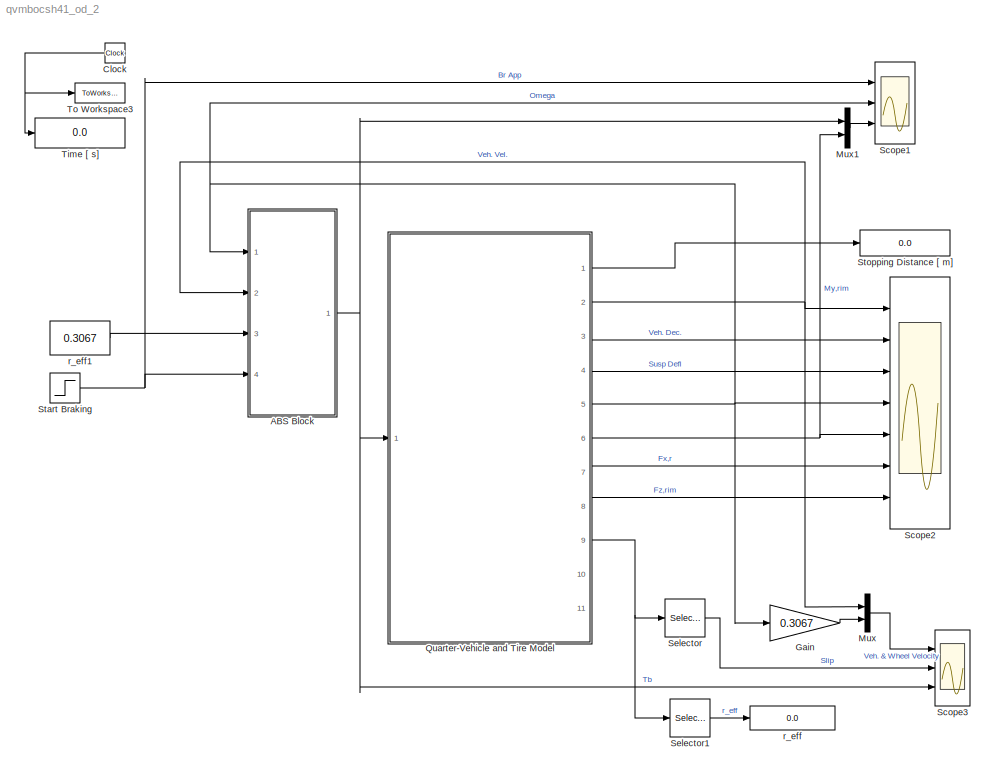
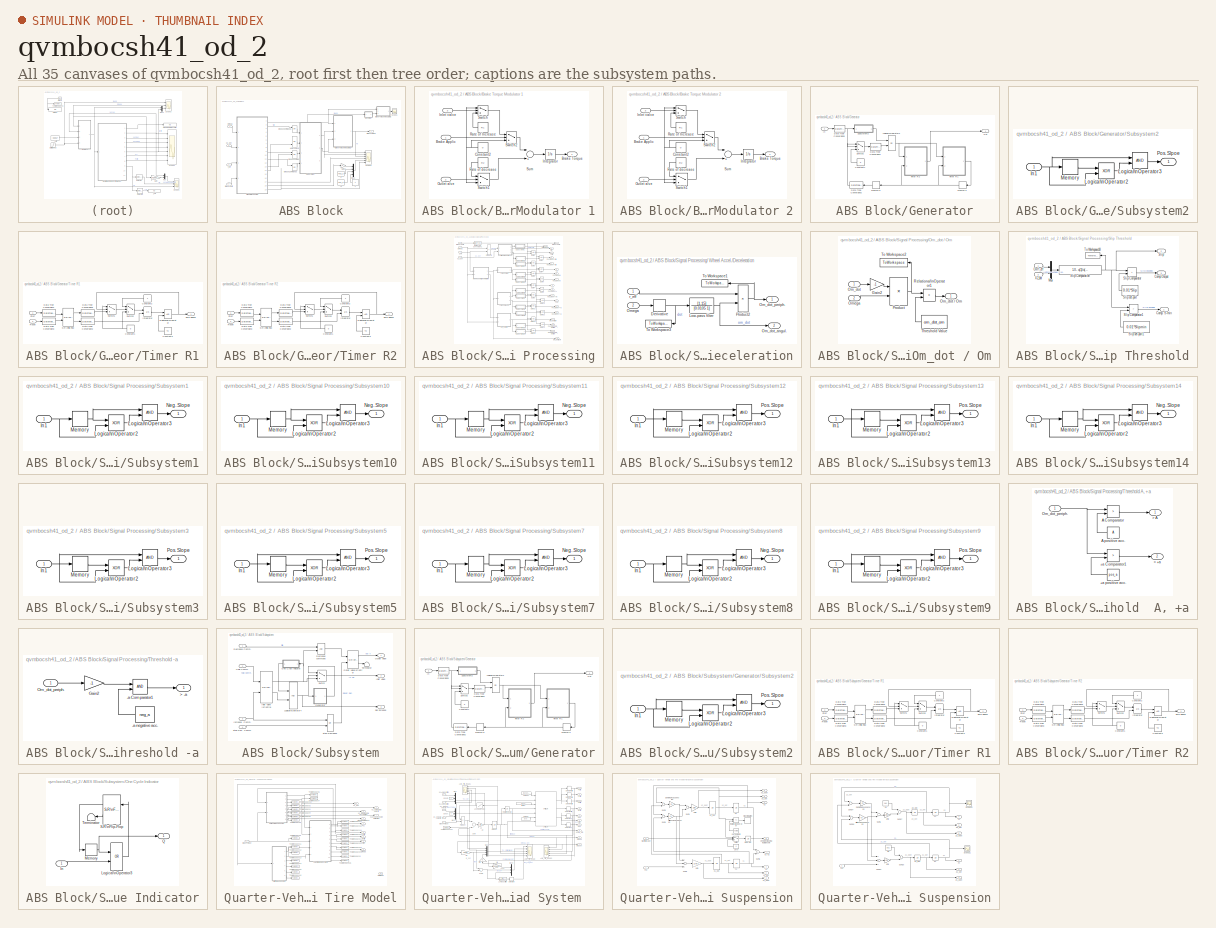
[diagram: thumbnail index - all 35 canvases of the model, root first then tree order]
MODEL qvmbocsh41_od_2
KIND model
CONFIG AbsTol = auto
CONFIG FixedStep = auto
CONFIG MaxStep = 0.001
CONFIG MinStep = auto
CONFIG RelTol = 1e-4
CONFIG Solver = ode45
CONFIG SolverMode = Auto
CONFIG StartTime = 0.0
CONFIG StopTime = 5.0
BLOCK [SubSystem] ABS Block
  MaskCallbackString = ||||||||||
  MaskEnableString = on,on,on,on,on,on,on,on,on,on,on
  MaskIconFrame = on
  MaskIconOpaque = on
  MaskIconRotate = none
  MaskIconUnits = autoscale
  MaskPromptString = R1 - Rate of incerase of the  Breake Torque. [Nm/s]|R2 - Rate of decerase of the  Breake Torque. [Nm/s]|Bmax - Max. Value of the Brake Torque. [Nm]|TO - Inlet Valve open time [s]|TC - Inlet Valve close time [s]|Desired slip [%]  |Slipmin - Minimum slip level|-a - Threshold value of the wheel peripheral deceleration [m/s^2]|+a - Threshold value of the wheel peripheral acceleration [m/s^2]|A - Thres...<+114ch>
  MaskStyleString = edit,edit,edit,edit,edit,edit,edit,edit,edit,edit,edit
  MaskToolTipString = on,on,on,on,on,on,on,on,on,on,on
  MaskTunableValueString = on,on,on,on,on,on,on,on,on,on,on
  MaskValueString = 19000|19000|2500|0.0065|0.050|20|17|60|3|10|3.5
  MaskVarAliasString = ,,,,,,,,,,
  MaskVariables = R1=@1;R2=@2;Bmax=@3;TO=@4;TC=@5;Slip=@6;Slipmin=@7;neg_a=@8;pos_a=@9;A=@10;om_dot_om=@11;
  MaskVisibilityString = on,on,on,on,on,on,on,on,on,on,on
  Ports = [4, 1]
  TreatAsAtomicUnit = off
BLOCK [Constant] ABS Block/+a
  Value = pos_a
BLOCK [Constant] ABS Block/-a
  Value = - neg_a
BLOCK [Constant] ABS Block/A
  Value = A
BLOCK [Inport] ABS Block/Brake Applic
  Port = 4
BLOCK [Outport] ABS Block/Brake Torque
BLOCK [SubSystem] ABS Block/Brake Torque Modulator 1
  Description = The sysytem holds the Brake Torque at the reached value if no control signal applied
  MaskCallbackString = ||
  MaskEnableString = on,on,on
  MaskIconFrame = on
  MaskIconOpaque = on
  MaskIconRotate = none
  MaskIconUnits = autoscale
  MaskPromptString = Bmax - Max. Value of the Brake Torque. [Nm]|R1 - Rate of incerase of the  Brake Torque. [Nm/s]|R2 - Rate of decerase of the  Brake Torque. [Nm/s]
  MaskStyleString = edit,edit,edit
  MaskToolTipString = on,on,on
  MaskTunableValueString = on,on,on
  MaskValueString = Bmax|R1|R2
  MaskVarAliasString = ,,
  MaskVariables = Bmax=@1;R1=@2;R2=@3;
  MaskVisibilityString = on,on,on
  Ports = [3, 1]
  TreatAsAtomicUnit = off
BLOCK [Inport] ABS Block/Brake Torque Modulator 1/Brake Applic
BLOCK [Outport] ABS Block/Brake Torque Modulator 1/Brake Torque
BLOCK [Constant] ABS Block/Brake Torque Modulator 1/Constant2
  Value = 0
BLOCK [Inport] ABS Block/Brake Torque Modulator 1/Inlet valve
  Port = 3
BLOCK [Integrator] ABS Block/Brake Torque Modulator 1/Integrator
  LimitOutput = on
  LowerSaturationLimit = 0
  Ports = [1, 1]
  UpperSaturationLimit = Bmax
BLOCK [Inport] ABS Block/Brake Torque Modulator 1/Outlet alve
  Port = 2
BLOCK [Constant] ABS Block/Brake Torque Modulator 1/Rate of Increase
  Value = R1
BLOCK [Constant] ABS Block/Brake Torque Modulator 1/Rate of decrease
  Value = R2
BLOCK [Sum] ABS Block/Brake Torque Modulator 1/Sum
  Inputs = |+-
  Ports = [2, 1]
BLOCK [Switch] ABS Block/Brake Torque Modulator 1/Switch
  Threshold = 1
BLOCK [Switch] ABS Block/Brake Torque Modulator 1/Switch1
  Threshold = 1
BLOCK [Switch] ABS Block/Brake Torque Modulator 1/Switch2
  Threshold = 1
BLOCK [SubSystem] ABS Block/Brake Torque Modulator 2
  Description = The sysytem holds the Brake Torque at the reached value if no control signal applied
  MaskCallbackString = ||
  MaskEnableString = on,on,on
  MaskIconFrame = on
  MaskIconOpaque = on
  MaskIconRotate = none
  MaskIconUnits = autoscale
  MaskPromptString = Bmax - Max. Value of the Brake Torque. [Nm]|R1 - Rate of incerase of the  Brake Torque. [Nm/s]|R2 - Rate of decerase of the  Brake Torque. [Nm/s]
  MaskStyleString = edit,edit,edit
  MaskToolTipString = on,on,on
  MaskTunableValueString = on,on,on
  MaskValueString = Bmax|R1|R2
  MaskVarAliasString = ,,
  MaskVariables = Bmax=@1;R1=@2;R2=@3;
  MaskVisibilityString = on,on,on
  Ports = [3, 1]
  TreatAsAtomicUnit = off
BLOCK [Inport] ABS Block/Brake Torque Modulator 2/Brake Applic
BLOCK [Outport] ABS Block/Brake Torque Modulator 2/Brake Torque
BLOCK [Constant] ABS Block/Brake Torque Modulator 2/Constant2
  Value = 0
BLOCK [Inport] ABS Block/Brake Torque Modulator 2/Inlet valve
  Port = 3
BLOCK [Integrator] ABS Block/Brake Torque Modulator 2/Integrator
  LimitOutput = on
  LowerSaturationLimit = 0
  Ports = [1, 1]
  UpperSaturationLimit = Bmax
BLOCK [Inport] ABS Block/Brake Torque Modulator 2/Outlet alve
  Port = 2
BLOCK [Constant] ABS Block/Brake Torque Modulator 2/Rate of Increase
  Value = R1
BLOCK [Constant] ABS Block/Brake Torque Modulator 2/Rate of decrease
  Value = R2
BLOCK [Sum] ABS Block/Brake Torque Modulator 2/Sum
  Inputs = |+-
  Ports = [2, 1]
BLOCK [Switch] ABS Block/Brake Torque Modulator 2/Switch
  Threshold = 1
BLOCK [Switch] ABS Block/Brake Torque Modulator 2/Switch1
  Threshold = 1
BLOCK [Switch] ABS Block/Brake Torque Modulator 2/Switch2
  Threshold = 1
BLOCK [Gain] ABS Block/Gain2
BLOCK [SubSystem] ABS Block/Generator
  MaskCallbackString = |
  MaskEnableString = on,on
  MaskIconFrame = on
  MaskIconOpaque = on
  MaskIconRotate = none
  MaskIconUnits = autoscale
  MaskPromptString = Valve open [s]|Valve closed [s]
  MaskStyleString = edit,edit
  MaskToolTipString = on,on
  MaskTunableValueString = on,on
  MaskValueString = TO|TC
  MaskVarAliasString = ,
  MaskVariables = TO=@1;TC=@2;
  MaskVisibilityString = on,on
  Ports = [1, 1]
  TreatAsAtomicUnit = off
BLOCK [Constant] ABS Block/Generator/Constant1
  Value = 0
BLOCK [DataTypeConversion] ABS Block/Generator/Data Type Conversion1
  DataType = boolean
BLOCK [DataTypeConversion] ABS Block/Generator/Data Type Conversion2
  DataType = double
BLOCK [DataTypeConversion] ABS Block/Generator/Data Type Conversion5
  DataType = boolean
BLOCK [Inport] ABS Block/Generator/In
BLOCK [Logic] ABS Block/Generator/Logical\nOperator2
  Operator = OR
  Ports = [2, 1]
BLOCK [Memory] ABS Block/Generator/Memory1
BLOCK [Memory] ABS Block/Generator/Memory2
BLOCK [Outport] ABS Block/Generator/Out
BLOCK [SubSystem] ABS Block/Generator/Subsystem2
  Ports = [1, 1]
  TreatAsAtomicUnit = off
BLOCK [Inport] ABS Block/Generator/Subsystem2/In1
BLOCK [Logic] ABS Block/Generator/Subsystem2/Logical\nOperator2
  Operator = XOR
  Ports = [2, 1]
BLOCK [Logic] ABS Block/Generator/Subsystem2/Logical\nOperator3
  Ports = [2, 1]
BLOCK [Memory] ABS Block/Generator/Subsystem2/Memory
BLOCK [Outport] ABS Block/Generator/Subsystem2/Pos. Slpoe
BLOCK [Switch] ABS Block/Generator/Switch2
  Threshold = 1
BLOCK [SubSystem] ABS Block/Generator/Timer R1
  MaskEnableString = on
  MaskIconFrame = on
  MaskIconOpaque = on
  MaskIconRotate = none
  MaskIconUnits = autoscale
  MaskPromptString = Cycle Time [s]
  MaskStyleString = edit
  MaskToolTipString = on
  MaskTunableValueString = on
  MaskValueString = TC
  MaskVariables = TC=@1;
  MaskVisibilityString = on
  Ports = [2, 1]
  TreatAsAtomicUnit = off
BLOCK [Constant] ABS Block/Generator/Timer R1/Constant1
  Value = 0
BLOCK [Constant] ABS Block/Generator/Timer R1/Constant2
BLOCK [Constant] ABS Block/Generator/Timer R1/Constant3
  Value = TC
BLOCK [DataTypeConversion] ABS Block/Generator/Timer R1/Data Type Conversion1
  DataType = boolean
BLOCK [DataTypeConversion] ABS Block/Generator/Timer R1/Data Type Conversion2
  DataType = double
BLOCK [DataTypeConversion] ABS Block/Generator/Timer R1/Data Type Conversion3
  DataType = boolean
BLOCK [DataTypeConversion] ABS Block/Generator/Timer R1/Data Type Conversion5
  DataType = double
BLOCK [Integrator] ABS Block/Generator/Timer R1/Integrator
  ExternalReset = level
  Ports = [2, 1]
BLOCK [RelationalOperator] ABS Block/Generator/Timer R1/Relational\nOperator
BLOCK [Inport] ABS Block/Generator/Timer R1/Reset
  Port = 2
BLOCK [Reference] ABS Block/Generator/Timer R1/S-R\nFlip-Flop  REF=simulink_extras/Flip Flops/S-R\nFlip-Flop
  Ports = [2, 2]
  SourceBlock = simulink_extras/Flip Flops/S-R\nFlip-Flop
  SourceType = SRFlipFlop
  initial_condition = 0
BLOCK [Inport] ABS Block/Generator/Timer R1/Start
BLOCK [Switch] ABS Block/Generator/Timer R1/Switch1
  Threshold = 1
BLOCK [Switch] ABS Block/Generator/Timer R1/Switch2
  Threshold = 1
BLOCK [Outport] ABS Block/Generator/Timer R1/Time elapse
BLOCK [SubSystem] ABS Block/Generator/Timer R2
  MaskEnableString = on
  MaskIconFrame = on
  MaskIconOpaque = on
  MaskIconRotate = none
  MaskIconUnits = autoscale
  MaskPromptString = Open time [s]
  MaskStyleString = edit
  MaskToolTipString = on
  MaskTunableValueString = on
  MaskValueString = TO
  MaskVariables = TO=@1;
  MaskVisibilityString = on
  Ports = [2, 1]
  TreatAsAtomicUnit = off
BLOCK [Constant] ABS Block/Generator/Timer R2/Constant1
  Value = 0
BLOCK [Constant] ABS Block/Generator/Timer R2/Constant2
BLOCK [Constant] ABS Block/Generator/Timer R2/Constant3
  Value = TO
BLOCK [DataTypeConversion] ABS Block/Generator/Timer R2/Data Type Conversion1
  DataType = boolean
BLOCK [DataTypeConversion] ABS Block/Generator/Timer R2/Data Type Conversion2
  DataType = double
BLOCK [DataTypeConversion] ABS Block/Generator/Timer R2/Data Type Conversion3
  DataType = boolean
BLOCK [DataTypeConversion] ABS Block/Generator/Timer R2/Data Type Conversion5
  DataType = double
BLOCK [Integrator] ABS Block/Generator/Timer R2/Integrator
  ExternalReset = level
  Ports = [2, 1]
BLOCK [RelationalOperator] ABS Block/Generator/Timer R2/Relational\nOperator
BLOCK [Inport] ABS Block/Generator/Timer R2/Reset
  Port = 2
BLOCK [Reference] ABS Block/Generator/Timer R2/S-R\nFlip-Flop  REF=simulink_extras/Flip Flops/S-R\nFlip-Flop
  Ports = [2, 2]
  SourceBlock = simulink_extras/Flip Flops/S-R\nFlip-Flop
  SourceType = SRFlipFlop
  initial_condition = 0
BLOCK [Inport] ABS Block/Generator/Timer R2/Start
BLOCK [Switch] ABS Block/Generator/Timer R2/Switch1
  Threshold = 1
BLOCK [Switch] ABS Block/Generator/Timer R2/Switch2
  Threshold = 1
BLOCK [Outport] ABS Block/Generator/Timer R2/Time elapse
BLOCK [Logic] ABS Block/Hold comand
  Inputs = 3
  Operator = OR
  Ports = [3, 1]
BLOCK [Logic] ABS Block/Icrease Command
  Inputs = 3
  Operator = OR
  Ports = [3, 1]
BLOCK [Logic] ABS Block/Icrease Command1
  Inputs = 3
  Operator = OR
  Ports = [3, 1]
BLOCK [Logic] ABS Block/Icrease Command3
  Inputs = 3
  Operator = OR
  Ports = [3, 1]
BLOCK [Mux] ABS Block/Mux1
  DisplayOption = bar
  Ports = [4, 1]
BLOCK [Inport] ABS Block/Omega
BLOCK [Scope] ABS Block/Scope1
  DataFormat = StructureWithTime
  LimitDataPoints = off
  NumInputPorts = 1
  Ports = [1]
  SaveName = ScopeData5
  TimeRange = 3
  YMax = 1
  YMin = -1
  ZoomMode = yonly
BLOCK [Scope] ABS Block/Scope3
  DataFormat = StructureWithTime
  LimitDataPoints = off
  NumInputPorts = 6
  Ports = [6]
  TimeRange = 3
  YMax = 1~1~1500~0.225~30~5
  YMin = 0~0~0~-0.025~-90~-5
  ZoomMode = yonly
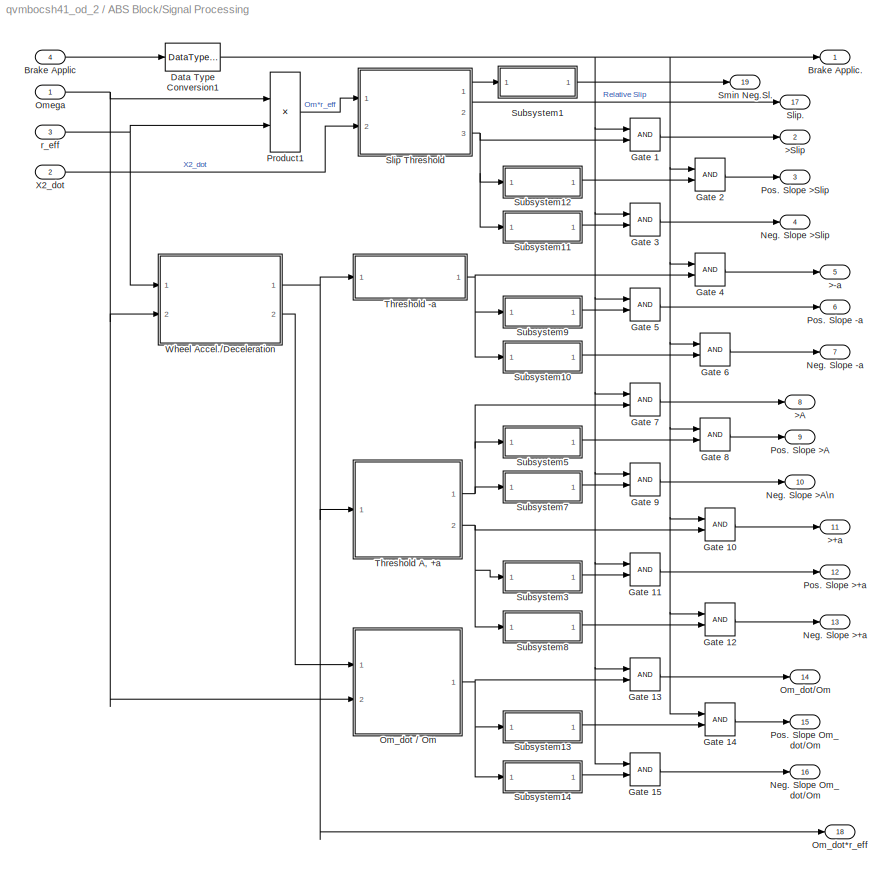
BLOCK [SubSystem] ABS Block/Signal Processing
  Ports = [4, 19]
  TreatAsAtomicUnit = off
BLOCK [Outport] ABS Block/Signal Processing/ Om_dot*r_eff
  Port = 18
BLOCK [SubSystem] ABS Block/Signal Processing/ Wheel Accel.//Deceleration
  Ports = [2, 2]
  TreatAsAtomicUnit = off
BLOCK [Derivative] ABS Block/Signal Processing/ Wheel Accel.//Deceleration/Derivative
BLOCK [TransferFcn] ABS Block/Signal Processing/ Wheel Accel.//Deceleration/Low-pass filter
  Denominator = [0.0105 1]
  Numerator = [1.15]
BLOCK [Outport] ABS Block/Signal Processing/ Wheel Accel.//Deceleration/Om_dot_angul.
  Port = 2
BLOCK [Outport] ABS Block/Signal Processing/ Wheel Accel.//Deceleration/Om_dot_periph.
BLOCK [Inport] ABS Block/Signal Processing/ Wheel Accel.//Deceleration/Omega
  Port = 2
BLOCK [Product] ABS Block/Signal Processing/ Wheel Accel.//Deceleration/Product2
  Inputs = **
  Ports = [2, 1]
BLOCK [ToWorkspace] ABS Block/Signal Processing/ Wheel Accel.//Deceleration/To Workspace1
  MaxDataPoints = 10000
  SaveFormat = Array
  VariableName = om_dot_per
BLOCK [ToWorkspace] ABS Block/Signal Processing/ Wheel Accel.//Deceleration/To Workspace3
  MaxDataPoints = 10000
  SaveFormat = Array
  VariableName = om_dotcont
BLOCK [Inport] ABS Block/Signal Processing/ Wheel Accel.//Deceleration/r_eff
BLOCK [Outport] ABS Block/Signal Processing/>+a
  Port = 11
BLOCK [Outport] ABS Block/Signal Processing/>-a
  Port = 5
BLOCK [Outport] ABS Block/Signal Processing/>A
  Port = 8
BLOCK [Outport] ABS Block/Signal Processing/>Slip
  Port = 2
BLOCK [Inport] ABS Block/Signal Processing/Brake Applic
  Port = 4
BLOCK [Outport] ABS Block/Signal Processing/Brake Applic.
BLOCK [DataTypeConversion] ABS Block/Signal Processing/Data Type Conversion1
  DataType = boolean
BLOCK [Logic] ABS Block/Signal Processing/Gate 1
  Ports = [2, 1]
BLOCK [Logic] ABS Block/Signal Processing/Gate 10
  Ports = [2, 1]
BLOCK [Logic] ABS Block/Signal Processing/Gate 11
  Ports = [2, 1]
BLOCK [Logic] ABS Block/Signal Processing/Gate 12
  Ports = [2, 1]
BLOCK [Logic] ABS Block/Signal Processing/Gate 13
  Ports = [2, 1]
BLOCK [Logic] ABS Block/Signal Processing/Gate 14
  Ports = [2, 1]
BLOCK [Logic] ABS Block/Signal Processing/Gate 15
  Ports = [2, 1]
BLOCK [Logic] ABS Block/Signal Processing/Gate 2
  Ports = [2, 1]
BLOCK [Logic] ABS Block/Signal Processing/Gate 3
  Ports = [2, 1]
BLOCK [Logic] ABS Block/Signal Processing/Gate 4
  Ports = [2, 1]
BLOCK [Logic] ABS Block/Signal Processing/Gate 5
  Ports = [2, 1]
BLOCK [Logic] ABS Block/Signal Processing/Gate 6
  Ports = [2, 1]
BLOCK [Logic] ABS Block/Signal Processing/Gate 7
  Ports = [2, 1]
BLOCK [Logic] ABS Block/Signal Processing/Gate 8
  Ports = [2, 1]
BLOCK [Logic] ABS Block/Signal Processing/Gate 9
  Ports = [2, 1]
BLOCK [Outport] ABS Block/Signal Processing/Neg. Slope -a
  Port = 7
BLOCK [Outport] ABS Block/Signal Processing/Neg. Slope >+a
  Port = 13
BLOCK [Outport] ABS Block/Signal Processing/Neg. Slope >A\n
  Port = 10
BLOCK [Outport] ABS Block/Signal Processing/Neg. Slope >Slip
  Port = 4
BLOCK [Outport] ABS Block/Signal Processing/Neg. Slope Om_dot//Om
  Port = 16
BLOCK [SubSystem] ABS Block/Signal Processing/Om_dot // Om
  Ports = [2, 1]
  TreatAsAtomicUnit = off
BLOCK [Gain] ABS Block/Signal Processing/Om_dot // Om/Gain2
  Gain = -1
BLOCK [Inport] ABS Block/Signal Processing/Om_dot // Om/Om_dot
BLOCK [Outport] ABS Block/Signal Processing/Om_dot // Om/Om_dot // Om
BLOCK [Inport] ABS Block/Signal Processing/Om_dot // Om/Omega
  Port = 2
BLOCK [Product] ABS Block/Signal Processing/Om_dot // Om/Product
  Inputs = */
  Ports = [2, 1]
BLOCK [RelationalOperator] ABS Block/Signal Processing/Om_dot // Om/Relational\nOperator1
  Operator = >
BLOCK [Constant] ABS Block/Signal Processing/Om_dot // Om/Threshold Value
  Value = om_dot_om
BLOCK [ToWorkspace] ABS Block/Signal Processing/Om_dot // Om/To Workspace2
  MaxDataPoints = 10000
  SaveFormat = Array
  VariableName = om_dotf_om
BLOCK [Outport] ABS Block/Signal Processing/Om_dot//Om
  Port = 14
BLOCK [Inport] ABS Block/Signal Processing/Omega
BLOCK [Outport] ABS Block/Signal Processing/Pos. Slope -a
  Port = 6
BLOCK [Outport] ABS Block/Signal Processing/Pos. Slope >+a
  Port = 12
BLOCK [Outport] ABS Block/Signal Processing/Pos. Slope >A
  Port = 9
BLOCK [Outport] ABS Block/Signal Processing/Pos. Slope >Slip
  Port = 3
BLOCK [Outport] ABS Block/Signal Processing/Pos. Slope Om_dot//Om
  Port = 15
BLOCK [Product] ABS Block/Signal Processing/Product1
  Inputs = **
  Ports = [2, 1]
BLOCK [SubSystem] ABS Block/Signal Processing/Slip Threshold
  Ports = [2, 3]
  TreatAsAtomicUnit = off
BLOCK [Fcn] ABS Block/Signal Processing/Slip Threshold/ Slip Computation
  Expr = 1.0 - u(1)/u(2)
BLOCK [Outport] ABS Block/Signal Processing/Slip Threshold/Comp. S-min
BLOCK [Outport] ABS Block/Signal Processing/Slip Threshold/Comp.Output
  Port = 3
BLOCK [Mux] ABS Block/Signal Processing/Slip Threshold/Mux
  DisplayOption = bar
  Inputs = 2
  Ports = [2, 1]
BLOCK [Inport] ABS Block/Signal Processing/Slip Threshold/Om*r_eff
BLOCK [Outport] ABS Block/Signal Processing/Slip Threshold/Slip
  Port = 2
BLOCK [RelationalOperator] ABS Block/Signal Processing/Slip Threshold/Slip Comparator
  Operator = >
BLOCK [RelationalOperator] ABS Block/Signal Processing/Slip Threshold/Slip Comparator1
  Operator = >
BLOCK [Constant] ABS Block/Signal Processing/Slip Threshold/Slip set-poit
  Value = 0.01*Slip
BLOCK [Constant] ABS Block/Signal Processing/Slip Threshold/Slip set-poit1
  Value = 0.01*Slipmin
BLOCK [ToWorkspace] ABS Block/Signal Processing/Slip Threshold/To Workspace18
  MaxDataPoints = 10000
  SaveFormat = Array
  VariableName = slip_est
BLOCK [Inport] ABS Block/Signal Processing/Slip Threshold/X2_dot
  Port = 2
BLOCK [Outport] ABS Block/Signal Processing/Slip.
  Port = 17
BLOCK [Outport] ABS Block/Signal Processing/Smin Neg.Sl.
  Port = 19
BLOCK [SubSystem] ABS Block/Signal Processing/Subsystem1
  Ports = [1, 1]
  TreatAsAtomicUnit = off
BLOCK [Inport] ABS Block/Signal Processing/Subsystem1/In1
BLOCK [Logic] ABS Block/Signal Processing/Subsystem1/Logical\nOperator2
  Operator = XOR
  Ports = [2, 1]
BLOCK [Logic] ABS Block/Signal Processing/Subsystem1/Logical\nOperator3
  Ports = [2, 1]
BLOCK [Memory] ABS Block/Signal Processing/Subsystem1/Memory
BLOCK [Outport] ABS Block/Signal Processing/Subsystem1/Neg. Slope
BLOCK [SubSystem] ABS Block/Signal Processing/Subsystem10
  Ports = [1, 1]
  TreatAsAtomicUnit = off
BLOCK [Inport] ABS Block/Signal Processing/Subsystem10/In1
BLOCK [Logic] ABS Block/Signal Processing/Subsystem10/Logical\nOperator2
  Operator = XOR
  Ports = [2, 1]
BLOCK [Logic] ABS Block/Signal Processing/Subsystem10/Logical\nOperator3
  Ports = [2, 1]
BLOCK [Memory] ABS Block/Signal Processing/Subsystem10/Memory
BLOCK [Outport] ABS Block/Signal Processing/Subsystem10/Neg. Slope
BLOCK [SubSystem] ABS Block/Signal Processing/Subsystem11
  Ports = [1, 1]
  TreatAsAtomicUnit = off
BLOCK [Inport] ABS Block/Signal Processing/Subsystem11/In1
BLOCK [Logic] ABS Block/Signal Processing/Subsystem11/Logical\nOperator2
  Operator = XOR
  Ports = [2, 1]
BLOCK [Logic] ABS Block/Signal Processing/Subsystem11/Logical\nOperator3
  Ports = [2, 1]
BLOCK [Memory] ABS Block/Signal Processing/Subsystem11/Memory
BLOCK [Outport] ABS Block/Signal Processing/Subsystem11/Neg. Slope
BLOCK [SubSystem] ABS Block/Signal Processing/Subsystem12
  Ports = [1, 1]
  TreatAsAtomicUnit = off
BLOCK [Inport] ABS Block/Signal Processing/Subsystem12/In1
BLOCK [Logic] ABS Block/Signal Processing/Subsystem12/Logical\nOperator2
  Operator = XOR
  Ports = [2, 1]
BLOCK [Logic] ABS Block/Signal Processing/Subsystem12/Logical\nOperator3
  Ports = [2, 1]
BLOCK [Memory] ABS Block/Signal Processing/Subsystem12/Memory
BLOCK [Outport] ABS Block/Signal Processing/Subsystem12/Pos. Slope
BLOCK [SubSystem] ABS Block/Signal Processing/Subsystem13
  Ports = [1, 1]
  TreatAsAtomicUnit = off
BLOCK [Inport] ABS Block/Signal Processing/Subsystem13/In1
BLOCK [Logic] ABS Block/Signal Processing/Subsystem13/Logical\nOperator2
  Operator = XOR
  Ports = [2, 1]
BLOCK [Logic] ABS Block/Signal Processing/Subsystem13/Logical\nOperator3
  Ports = [2, 1]
BLOCK [Memory] ABS Block/Signal Processing/Subsystem13/Memory
BLOCK [Outport] ABS Block/Signal Processing/Subsystem13/Pos. Slope
BLOCK [SubSystem] ABS Block/Signal Processing/Subsystem14
  Ports = [1, 1]
  TreatAsAtomicUnit = off
BLOCK [Inport] ABS Block/Signal Processing/Subsystem14/In1
BLOCK [Logic] ABS Block/Signal Processing/Subsystem14/Logical\nOperator2
  Operator = XOR
  Ports = [2, 1]
BLOCK [Logic] ABS Block/Signal Processing/Subsystem14/Logical\nOperator3
  Ports = [2, 1]
BLOCK [Memory] ABS Block/Signal Processing/Subsystem14/Memory
BLOCK [Outport] ABS Block/Signal Processing/Subsystem14/Neg. Slope
BLOCK [SubSystem] ABS Block/Signal Processing/Subsystem3
  Ports = [1, 1]
  TreatAsAtomicUnit = off
BLOCK [Inport] ABS Block/Signal Processing/Subsystem3/In1
BLOCK [Logic] ABS Block/Signal Processing/Subsystem3/Logical\nOperator2
  Operator = XOR
  Ports = [2, 1]
BLOCK [Logic] ABS Block/Signal Processing/Subsystem3/Logical\nOperator3
  Ports = [2, 1]
BLOCK [Memory] ABS Block/Signal Processing/Subsystem3/Memory
BLOCK [Outport] ABS Block/Signal Processing/Subsystem3/Pos. Slope
BLOCK [SubSystem] ABS Block/Signal Processing/Subsystem5
  Ports = [1, 1]
  TreatAsAtomicUnit = off
BLOCK [Inport] ABS Block/Signal Processing/Subsystem5/In1
BLOCK [Logic] ABS Block/Signal Processing/Subsystem5/Logical\nOperator2
  Operator = XOR
  Ports = [2, 1]
BLOCK [Logic] ABS Block/Signal Processing/Subsystem5/Logical\nOperator3
  Ports = [2, 1]
BLOCK [Memory] ABS Block/Signal Processing/Subsystem5/Memory
BLOCK [Outport] ABS Block/Signal Processing/Subsystem5/Pos. Slope
BLOCK [SubSystem] ABS Block/Signal Processing/Subsystem7
  Ports = [1, 1]
  TreatAsAtomicUnit = off
BLOCK [Inport] ABS Block/Signal Processing/Subsystem7/In1
BLOCK [Logic] ABS Block/Signal Processing/Subsystem7/Logical\nOperator2
  Operator = XOR
  Ports = [2, 1]
BLOCK [Logic] ABS Block/Signal Processing/Subsystem7/Logical\nOperator3
  Ports = [2, 1]
BLOCK [Memory] ABS Block/Signal Processing/Subsystem7/Memory
BLOCK [Outport] ABS Block/Signal Processing/Subsystem7/Neg. Slope
BLOCK [SubSystem] ABS Block/Signal Processing/Subsystem8
  Ports = [1, 1]
  TreatAsAtomicUnit = off
BLOCK [Inport] ABS Block/Signal Processing/Subsystem8/In1
BLOCK [Logic] ABS Block/Signal Processing/Subsystem8/Logical\nOperator2
  Operator = XOR
  Ports = [2, 1]
BLOCK [Logic] ABS Block/Signal Processing/Subsystem8/Logical\nOperator3
  Ports = [2, 1]
BLOCK [Memory] ABS Block/Signal Processing/Subsystem8/Memory
BLOCK [Outport] ABS Block/Signal Processing/Subsystem8/Neg. Slope
BLOCK [SubSystem] ABS Block/Signal Processing/Subsystem9
  Ports = [1, 1]
  TreatAsAtomicUnit = off
BLOCK [Inport] ABS Block/Signal Processing/Subsystem9/In1
BLOCK [Logic] ABS Block/Signal Processing/Subsystem9/Logical\nOperator2
  Operator = XOR
  Ports = [2, 1]
BLOCK [Logic] ABS Block/Signal Processing/Subsystem9/Logical\nOperator3
  Ports = [2, 1]
BLOCK [Memory] ABS Block/Signal Processing/Subsystem9/Memory
BLOCK [Outport] ABS Block/Signal Processing/Subsystem9/Pos. Slope
BLOCK [SubSystem] ABS Block/Signal Processing/Threshold  A, +a
  Ports = [1, 2]
  TreatAsAtomicUnit = off
BLOCK [Outport] ABS Block/Signal Processing/Threshold  A, +a/ > A
BLOCK [RelationalOperator] ABS Block/Signal Processing/Threshold  A, +a/+a Comparator1
  Operator = >
BLOCK [Constant] ABS Block/Signal Processing/Threshold  A, +a/+a positive acc.
  Value = pos_a
BLOCK [Outport] ABS Block/Signal Processing/Threshold  A, +a/> +a
  Port = 2
BLOCK [RelationalOperator] ABS Block/Signal Processing/Threshold  A, +a/A Comparator
  Operator = >
BLOCK [Constant] ABS Block/Signal Processing/Threshold  A, +a/A positive acc.
  Value = A
BLOCK [Inport] ABS Block/Signal Processing/Threshold  A, +a/Om_dot_periph.
BLOCK [SubSystem] ABS Block/Signal Processing/Threshold -a
  Ports = [1, 1]
  TreatAsAtomicUnit = off
BLOCK [RelationalOperator] ABS Block/Signal Processing/Threshold -a/-a Comparator1
BLOCK [Constant] ABS Block/Signal Processing/Threshold -a/-a negative acc.
  Value = neg_a
BLOCK [Outport] ABS Block/Signal Processing/Threshold -a/> -a
BLOCK [Gain] ABS Block/Signal Processing/Threshold -a/Gain2
  Gain = -1
BLOCK [Inport] ABS Block/Signal Processing/Threshold -a/Om_dot_periph.
BLOCK [Inport] ABS Block/Signal Processing/X2_dot
  Port = 2
BLOCK [Inport] ABS Block/Signal Processing/r_eff
  Port = 3
BLOCK [SubSystem] ABS Block/Subsystem
  Ports = [4, 3]
  TreatAsAtomicUnit = off
BLOCK [Inport] ABS Block/Subsystem/Decrease Comm.
BLOCK [Logic] ABS Block/Subsystem/Decrease command
  Ports = [2, 1]
BLOCK [SubSystem] ABS Block/Subsystem/Generator
  MaskCallbackString = |
  MaskEnableString = on,on
  MaskIconFrame = on
  MaskIconOpaque = on
  MaskIconRotate = none
  MaskIconUnits = autoscale
  MaskPromptString = Valve open [s]|Valve closed [s]
  MaskStyleString = edit,edit
  MaskToolTipString = on,on
  MaskTunableValueString = on,on
  MaskValueString = TO|TC
  MaskVarAliasString = ,
  MaskVariables = TO=@1;TC=@2;
  MaskVisibilityString = on,on
  Ports = [1, 1]
  TreatAsAtomicUnit = off
BLOCK [Constant] ABS Block/Subsystem/Generator/Constant1
  Value = 0
BLOCK [DataTypeConversion] ABS Block/Subsystem/Generator/Data Type Conversion1
  DataType = boolean
BLOCK [DataTypeConversion] ABS Block/Subsystem/Generator/Data Type Conversion2
  DataType = double
BLOCK [DataTypeConversion] ABS Block/Subsystem/Generator/Data Type Conversion5
  DataType = boolean
BLOCK [Inport] ABS Block/Subsystem/Generator/In
BLOCK [Logic] ABS Block/Subsystem/Generator/Logical\nOperator2
  Operator = OR
  Ports = [2, 1]
BLOCK [Memory] ABS Block/Subsystem/Generator/Memory1
BLOCK [Memory] ABS Block/Subsystem/Generator/Memory2
BLOCK [Outport] ABS Block/Subsystem/Generator/Out
BLOCK [SubSystem] ABS Block/Subsystem/Generator/Subsystem2
  Ports = [1, 1]
  TreatAsAtomicUnit = off
BLOCK [Inport] ABS Block/Subsystem/Generator/Subsystem2/In1
BLOCK [Logic] ABS Block/Subsystem/Generator/Subsystem2/Logical\nOperator2
  Operator = XOR
  Ports = [2, 1]
BLOCK [Logic] ABS Block/Subsystem/Generator/Subsystem2/Logical\nOperator3
  Ports = [2, 1]
BLOCK [Memory] ABS Block/Subsystem/Generator/Subsystem2/Memory
BLOCK [Outport] ABS Block/Subsystem/Generator/Subsystem2/Pos. Slpoe
BLOCK [Switch] ABS Block/Subsystem/Generator/Switch2
  Threshold = 1
BLOCK [SubSystem] ABS Block/Subsystem/Generator/Timer R1
  MaskEnableString = on
  MaskIconFrame = on
  MaskIconOpaque = on
  MaskIconRotate = none
  MaskIconUnits = autoscale
  MaskPromptString = Cycle Time [s]
  MaskStyleString = edit
  MaskToolTipString = on
  MaskTunableValueString = on
  MaskValueString = TC
  MaskVariables = TC=@1;
  MaskVisibilityString = on
  Ports = [2, 1]
  TreatAsAtomicUnit = off
BLOCK [Constant] ABS Block/Subsystem/Generator/Timer R1/Constant1
  Value = 0
BLOCK [Constant] ABS Block/Subsystem/Generator/Timer R1/Constant2
BLOCK [Constant] ABS Block/Subsystem/Generator/Timer R1/Constant3
  Value = TC
BLOCK [DataTypeConversion] ABS Block/Subsystem/Generator/Timer R1/Data Type Conversion1
  DataType = boolean
BLOCK [DataTypeConversion] ABS Block/Subsystem/Generator/Timer R1/Data Type Conversion2
  DataType = double
BLOCK [DataTypeConversion] ABS Block/Subsystem/Generator/Timer R1/Data Type Conversion3
  DataType = boolean
BLOCK [DataTypeConversion] ABS Block/Subsystem/Generator/Timer R1/Data Type Conversion5
  DataType = double
BLOCK [Integrator] ABS Block/Subsystem/Generator/Timer R1/Integrator
  ExternalReset = level
  Ports = [2, 1]
BLOCK [RelationalOperator] ABS Block/Subsystem/Generator/Timer R1/Relational\nOperator
BLOCK [Inport] ABS Block/Subsystem/Generator/Timer R1/Reset
  Port = 2
BLOCK [Reference] ABS Block/Subsystem/Generator/Timer R1/S-R\nFlip-Flop  REF=simulink_extras/Flip Flops/S-R\nFlip-Flop
  Ports = [2, 2]
  SourceBlock = simulink_extras/Flip Flops/S-R\nFlip-Flop
  SourceType = SRFlipFlop
  initial_condition = 0
BLOCK [Inport] ABS Block/Subsystem/Generator/Timer R1/Start
BLOCK [Switch] ABS Block/Subsystem/Generator/Timer R1/Switch1
  Threshold = 1
BLOCK [Switch] ABS Block/Subsystem/Generator/Timer R1/Switch2
  Threshold = 1
BLOCK [Outport] ABS Block/Subsystem/Generator/Timer R1/Time elapse
BLOCK [SubSystem] ABS Block/Subsystem/Generator/Timer R2
  MaskEnableString = on
  MaskIconFrame = on
  MaskIconOpaque = on
  MaskIconRotate = none
  MaskIconUnits = autoscale
  MaskPromptString = Open time [s]
  MaskStyleString = edit
  MaskToolTipString = on
  MaskTunableValueString = on
  MaskValueString = TO
  MaskVariables = TO=@1;
  MaskVisibilityString = on
  Ports = [2, 1]
  TreatAsAtomicUnit = off
BLOCK [Constant] ABS Block/Subsystem/Generator/Timer R2/Constant1
  Value = 0
BLOCK [Constant] ABS Block/Subsystem/Generator/Timer R2/Constant2
BLOCK [Constant] ABS Block/Subsystem/Generator/Timer R2/Constant3
  Value = TO
BLOCK [DataTypeConversion] ABS Block/Subsystem/Generator/Timer R2/Data Type Conversion1
  DataType = boolean
BLOCK [DataTypeConversion] ABS Block/Subsystem/Generator/Timer R2/Data Type Conversion2
  DataType = double
BLOCK [DataTypeConversion] ABS Block/Subsystem/Generator/Timer R2/Data Type Conversion3
  DataType = boolean
BLOCK [DataTypeConversion] ABS Block/Subsystem/Generator/Timer R2/Data Type Conversion5
  DataType = double
BLOCK [Integrator] ABS Block/Subsystem/Generator/Timer R2/Integrator
  ExternalReset = level
  Ports = [2, 1]
BLOCK [RelationalOperator] ABS Block/Subsystem/Generator/Timer R2/Relational\nOperator
BLOCK [Inport] ABS Block/Subsystem/Generator/Timer R2/Reset
  Port = 2
BLOCK [Reference] ABS Block/Subsystem/Generator/Timer R2/S-R\nFlip-Flop  REF=simulink_extras/Flip Flops/S-R\nFlip-Flop
  Ports = [2, 2]
  SourceBlock = simulink_extras/Flip Flops/S-R\nFlip-Flop
  SourceType = SRFlipFlop
  initial_condition = 0
BLOCK [Inport] ABS Block/Subsystem/Generator/Timer R2/Start
BLOCK [Switch] ABS Block/Subsystem/Generator/Timer R2/Switch1
  Threshold = 1
BLOCK [Switch] ABS Block/Subsystem/Generator/Timer R2/Switch2
  Threshold = 1
BLOCK [Outport] ABS Block/Subsystem/Generator/Timer R2/Time elapse
BLOCK [Inport] ABS Block/Subsystem/Hold Comm.
  Port = 2
BLOCK [Inport] ABS Block/Subsystem/Increase. Comm.
  Port = 3
BLOCK [Outport] ABS Block/Subsystem/Inlet Valve
  Port = 2
BLOCK [Reference] ABS Block/Subsystem/Inlet Valve \nControl  REF=simulink_extras/Flip Flops/S-R\nFlip-Flop
  Ports = [2, 2]
  SourceBlock = simulink_extras/Flip Flops/S-R\nFlip-Flop
  SourceType = SRFlipFlop
  initial_condition = 0
BLOCK [Logic] ABS Block/Subsystem/Logical\nOperator4
  Ports = [2, 1]
BLOCK [SubSystem] ABS Block/Subsystem/One Cycle Indicator
  Ports = [1, 1]
  TreatAsAtomicUnit = off
BLOCK [Inport] ABS Block/Subsystem/One Cycle Indicator/In
BLOCK [Logic] ABS Block/Subsystem/One Cycle Indicator/Logical\nOperator3
  Operator = OR
  Ports = [2, 1]
BLOCK [Memory] ABS Block/Subsystem/One Cycle Indicator/Memory
BLOCK [Outport] ABS Block/Subsystem/One Cycle Indicator/Q
BLOCK [Reference] ABS Block/Subsystem/One Cycle Indicator/S-R\nFlip-Flop  REF=simulink_extras/Flip Flops/S-R\nFlip-Flop
  Ports = [2, 2]
  SourceBlock = simulink_extras/Flip Flops/S-R\nFlip-Flop
  SourceType = SRFlipFlop
  initial_condition = 0
BLOCK [Terminator] ABS Block/Subsystem/One Cycle Indicator/Terminator
BLOCK [Outport] ABS Block/Subsystem/Outlet Valve
BLOCK [Reference] ABS Block/Subsystem/Outlet Valve\nControl  REF=simulink_extras/Flip Flops/S-R\nFlip-Flop
  Ports = [2, 2]
  SourceBlock = simulink_extras/Flip Flops/S-R\nFlip-Flop
  SourceType = SRFlipFlop
  initial_condition = 0
BLOCK [Outport] ABS Block/Subsystem/Sec increase
  Port = 3
BLOCK [Inport] ABS Block/Subsystem/Stop Dec. Comm.
  Port = 4
BLOCK [Logic] ABS Block/Subsystem/Stop Decrease
  Operator = OR
  Ports = [2, 1]
BLOCK [Switch] ABS Block/Subsystem/Switch
BLOCK [Terminator] ABS Block/Subsystem/Terminator
BLOCK [Inport] ABS Block/X2_dot
  Port = 2
BLOCK [Inport] ABS Block/r_eff
  Port = 3
BLOCK [Clock] Clock
  Decimation = 10
BLOCK [Gain] Gain
  Gain = 0.3067
BLOCK [Mux] Mux
  DisplayOption = bar
  Inputs = 2
  Ports = [2, 1]
BLOCK [Mux] Mux1
  DisplayOption = bar
  Inputs = 2
  Ports = [2, 1]
BLOCK [SubSystem] Quarter-Vehicle and Tire Model
  MaskCallbackString = ||||||||||
  MaskDescription = Vstop - The velocity value, at which the vehicle is considered stoped.
  MaskEnableString = on,on,on,on,on,on,on,on,on,on,on
  MaskIconFrame = on
  MaskIconOpaque = on
  MaskIconRotate = none
  MaskIconUnits = autoscale
  MaskInitialization = disp('initial conditions...')\nZ10=ro - 9.81*(m1+m2)/195000\nZ20=Z10 - 9.81*m2/kz\nX20=0\nX10=X20+0.01\nVin\nr_eff\nOm_in=Vin/r_eff\n
  MaskPromptString = m2 - Quarter of the vehicle mass [kg]|m1 - Axle mass [kg]|kz - Suspension stiffness [N/m]|cz - Suspension damping [N.s/m]|kx - Longitudinal suspension stiffness [N/m]|cx - Longitudinal suspension damping [N.s/m]|Vstop - Velocity at which the vehicle is considered stoped [m/s]|Ip - Wheel polar moment of inertia [kg.m^2]|ro - Unloaded tire radius [m]|r_eff - Effecive rolling radius [m]|Vin - Initial...<+23ch>
  MaskStyleString = edit,edit,edit,edit,edit,edit,edit,edit,edit,edit,edit
  MaskToolTipString = on,on,on,on,on,on,on,on,on,on,on
  MaskTunableValueString = on,on,on,on,on,on,on,on,on,on,on
  MaskValueString = 300|35|20000|2000|80000|1100|1|1.04|0.3135|0.3067|80/3.6
  MaskVarAliasString = ,,,,,,,,,,
  MaskVariables = m2=@1;m1=@2;kz=@3;Cz=@4;kx=@5;Cx=@6;Vstop=@7;Ip=@8;ro=@9;r_eff=@10;Vin=@11;
  MaskVisibilityString = on,on,on,on,on,on,on,on,on,on,on
  Ports = [1, 11]
  TreatAsAtomicUnit = off
BLOCK [Inport] Quarter-Vehicle and Tire Model/ Brake Torque
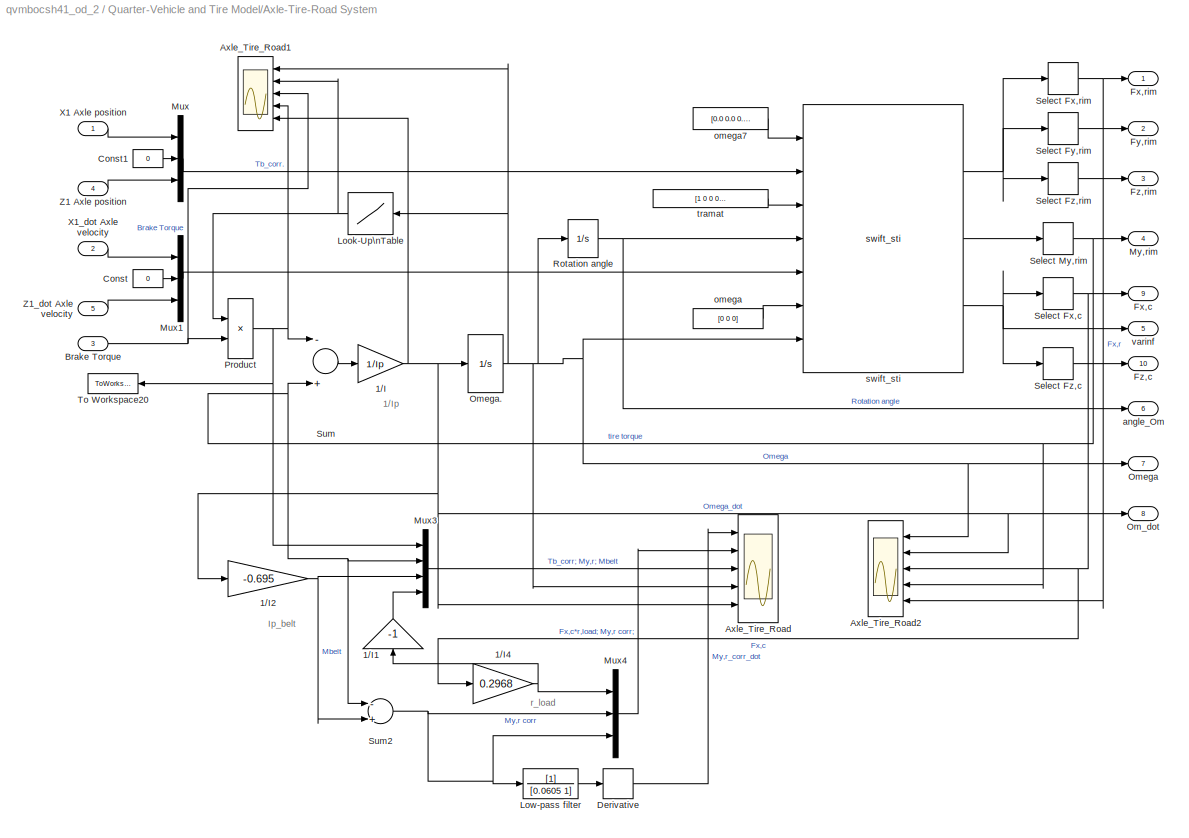
BLOCK [SubSystem] Quarter-Vehicle and Tire Model/Axle-Tire-Road System  
  Ports = [5, 10]
  TreatAsAtomicUnit = off
BLOCK [Outport] Quarter-Vehicle and Tire Model/Axle-Tire-Road System  / Omega
  Port = 7
BLOCK [Gain] Quarter-Vehicle and Tire Model/Axle-Tire-Road System  /1//I
  Gain = 1/Ip
BLOCK [Gain] Quarter-Vehicle and Tire Model/Axle-Tire-Road System  /1//I1
  Gain = -1
BLOCK [Gain] Quarter-Vehicle and Tire Model/Axle-Tire-Road System  /1//I2
  Gain = -0.695
BLOCK [Gain] Quarter-Vehicle and Tire Model/Axle-Tire-Road System  /1//I4
  Gain = 0.2968
BLOCK [Scope] Quarter-Vehicle and Tire Model/Axle-Tire-Road System  /Axle_Tire_Road
  DataFormat = StructureWithTime
  LimitDataPoints = off
  NumInputPorts = 5
  Ports = [5]
  SaveName = ScopeData8
  YMax = 10000~250~1500~75~200
  YMin = -25000~-1500~-250~35~-250
  ZoomMode = yonly
BLOCK [Scope] Quarter-Vehicle and Tire Model/Axle-Tire-Road System  /Axle_Tire_Road1
  DataFormat = StructureWithTime
  LimitDataPoints = off
  NumInputPorts = 5
  Ports = [5]
  SaveName = ScopeData9
  YMax = 100~1.1~9000~3500~250
  YMin = 0~5.55112e-017~0~0~-1500
  ZoomMode = xonly
BLOCK [Scope] Quarter-Vehicle and Tire Model/Axle-Tire-Road System  /Axle_Tire_Road2
  DataFormat = StructureWithTime
  LimitDataPoints = off
  NumInputPorts = 5
  Ports = [5]
  SaveName = ScopeData2
  YMax = 80~250~1000~1750~1000
  YMin = 0~-1500~-5000~-250~-5000
  ZoomMode = yonly
BLOCK [Inport] Quarter-Vehicle and Tire Model/Axle-Tire-Road System  /Brake Torque
  Port = 3
BLOCK [Constant] Quarter-Vehicle and Tire Model/Axle-Tire-Road System  /Const
  Value = 0
BLOCK [Constant] Quarter-Vehicle and Tire Model/Axle-Tire-Road System  /Const1
  Value = 0
BLOCK [Derivative] Quarter-Vehicle and Tire Model/Axle-Tire-Road System  /Derivative
BLOCK [Outport] Quarter-Vehicle and Tire Model/Axle-Tire-Road System  /Fx,c
  Port = 9
BLOCK [Outport] Quarter-Vehicle and Tire Model/Axle-Tire-Road System  /Fx,rim
BLOCK [Outport] Quarter-Vehicle and Tire Model/Axle-Tire-Road System  /Fy,rim
  Port = 2
BLOCK [Outport] Quarter-Vehicle and Tire Model/Axle-Tire-Road System  /Fz,c
  Port = 10
BLOCK [Outport] Quarter-Vehicle and Tire Model/Axle-Tire-Road System  /Fz,rim
  Port = 3
BLOCK [Lookup] Quarter-Vehicle and Tire Model/Axle-Tire-Road System  /Look-Up\nTable
  InputValues = [-10:0.01:10]
  OutputValues = tanh(0.5*[-10:0.01:10])
BLOCK [TransferFcn] Quarter-Vehicle and Tire Model/Axle-Tire-Road System  /Low-pass filter
  Denominator = [0.0605 1]
BLOCK [Mux] Quarter-Vehicle and Tire Model/Axle-Tire-Road System  /Mux
  DisplayOption = bar
  Inputs = 3
  Ports = [3, 1]
BLOCK [Mux] Quarter-Vehicle and Tire Model/Axle-Tire-Road System  /Mux1
  DisplayOption = bar
  Inputs = 3
  Ports = [3, 1]
BLOCK [Mux] Quarter-Vehicle and Tire Model/Axle-Tire-Road System  /Mux3
  DisplayOption = bar
  Ports = [4, 1]
BLOCK [Mux] Quarter-Vehicle and Tire Model/Axle-Tire-Road System  /Mux4
  DisplayOption = bar
  Inputs = 3
  Ports = [3, 1]
BLOCK [Outport] Quarter-Vehicle and Tire Model/Axle-Tire-Road System  /My,rim
  Port = 4
BLOCK [Outport] Quarter-Vehicle and Tire Model/Axle-Tire-Road System  /Om_dot
  Port = 8
BLOCK [Integrator] Quarter-Vehicle and Tire Model/Axle-Tire-Road System  /Omega.
  InitialCondition = Om_in
  LowerSaturationLimit = 0
  Ports = [1, 1]
  UpperSaturationLimit = 200
BLOCK [Product] Quarter-Vehicle and Tire Model/Axle-Tire-Road System  /Product
  Ports = [2, 1]
BLOCK [Integrator] Quarter-Vehicle and Tire Model/Axle-Tire-Road System  /Rotation angle
  LowerSaturationLimit = 0
  Ports = [1, 1]
  UpperSaturationLimit = 1000
BLOCK [Selector] Quarter-Vehicle and Tire Model/Axle-Tire-Road System  /Select Fx,c
  Elements = 4
  InputPortWidth = 40
  Ports = [1, 1]
BLOCK [Selector] Quarter-Vehicle and Tire Model/Axle-Tire-Road System  /Select Fx,rim
  InputPortWidth = 3
  Ports = [1, 1]
BLOCK [Selector] Quarter-Vehicle and Tire Model/Axle-Tire-Road System  /Select Fy,rim
  Elements = 2
  InputPortWidth = 3
  Ports = [1, 1]
BLOCK [Selector] Quarter-Vehicle and Tire Model/Axle-Tire-Road System  /Select Fz,c
  Elements = 6
  InputPortWidth = 40
  Ports = [1, 1]
BLOCK [Selector] Quarter-Vehicle and Tire Model/Axle-Tire-Road System  /Select Fz,rim
  Elements = 3
  InputPortWidth = 3
  Ports = [1, 1]
BLOCK [Selector] Quarter-Vehicle and Tire Model/Axle-Tire-Road System  /Select My,rim
  Elements = 2
  InputPortWidth = 3
  Ports = [1, 1]
BLOCK [Sum] Quarter-Vehicle and Tire Model/Axle-Tire-Road System  /Sum
  Inputs = -+
  Ports = [2, 1]
BLOCK [Sum] Quarter-Vehicle and Tire Model/Axle-Tire-Road System  /Sum2
  Inputs = -+
  Ports = [2, 1]
BLOCK [ToWorkspace] Quarter-Vehicle and Tire Model/Axle-Tire-Road System  /To Workspace20
  MaxDataPoints = 10000
  SaveFormat = Array
  VariableName = Tb_corr
BLOCK [Inport] Quarter-Vehicle and Tire Model/Axle-Tire-Road System  /X1 Axle position
BLOCK [Inport] Quarter-Vehicle and Tire Model/Axle-Tire-Road System  /X1_dot Axle velocity
  Port = 2
BLOCK [Inport] Quarter-Vehicle and Tire Model/Axle-Tire-Road System  /Z1 Axle position
  Port = 4
BLOCK [Inport] Quarter-Vehicle and Tire Model/Axle-Tire-Road System  /Z1_dot Axle velocity
  Port = 5
BLOCK [Outport] Quarter-Vehicle and Tire Model/Axle-Tire-Road System  /angle_Om
  Port = 6
BLOCK [Constant] Quarter-Vehicle and Tire Model/Axle-Tire-Road System  /omega
  Value = [0 0 0]
BLOCK [Constant] Quarter-Vehicle and Tire Model/Axle-Tire-Road System  /omega7
  Value = [0.0 0.0 0.0]
BLOCK [Reference] Quarter-Vehicle and Tire Model/Axle-Tire-Road System  /swift_sti  REF=dtlib/swift_sti  (lib defined in mdl_8cef2accd2ac)
  Ports = [7, 3]
  SourceBlock = dtlib/swift_sti
  SourceType = SWIFT_STI
  idtyre = 1
  rdfname = 'div_road_5.rdf'
  road_popup = Data file (effective inputs)
  tpfname = 'L_swt_car205_60R15.tir'
  use_mode = 124
BLOCK [Constant] Quarter-Vehicle and Tire Model/Axle-Tire-Road System  /tramat
  Value = [1 0 0    0 1 0    0 0 1]
BLOCK [Outport] Quarter-Vehicle and Tire Model/Axle-Tire-Road System  /varinf
  Port = 5
BLOCK [Outport] Quarter-Vehicle and Tire Model/Fx,r
  Port = 7
BLOCK [Outport] Quarter-Vehicle and Tire Model/Fz,rim
  Port = 8
BLOCK [SubSystem] Quarter-Vehicle and Tire Model/Horizontal Suspension
  Ports = [2, 8]
  TreatAsAtomicUnit = off
BLOCK [Gain] Quarter-Vehicle and Tire Model/Horizontal Suspension/1//m1
  Gain = 1/m1
BLOCK [Gain] Quarter-Vehicle and Tire Model/Horizontal Suspension/1//m2
  Gain = 1/m2
BLOCK [Gain] Quarter-Vehicle and Tire Model/Horizontal Suspension/Damping\nSuspension
  Gain = Cx
BLOCK [Inport] Quarter-Vehicle and Tire Model/Horizontal Suspension/Fx,r 
BLOCK [Integrator] Quarter-Vehicle and Tire Model/Horizontal Suspension/Integrator
  Ports = [1, 1]
BLOCK [RelationalOperator] Quarter-Vehicle and Tire Model/Horizontal Suspension/Relational\nOperator
  Operator = <=
BLOCK [Inport] Quarter-Vehicle and Tire Model/Horizontal Suspension/Start to Brake
  Port = 2
BLOCK [Gain] Quarter-Vehicle and Tire Model/Horizontal Suspension/Stiffness\nSuspension
  Gain = kx
BLOCK [Stop] Quarter-Vehicle and Tire Model/Horizontal Suspension/Stop Simulation
BLOCK [Sum] Quarter-Vehicle and Tire Model/Horizontal Suspension/Sum1
  Inputs = --
  Ports = [2, 1]
BLOCK [Sum] Quarter-Vehicle and Tire Model/Horizontal Suspension/Sum2
  Inputs = +++
  Ports = [3, 1]
BLOCK [Sum] Quarter-Vehicle and Tire Model/Horizontal Suspension/Sum3
  Inputs = +-
  Ports = [2, 1]
BLOCK [Sum] Quarter-Vehicle and Tire Model/Horizontal Suspension/Sum4
  Inputs = +-
  Ports = [2, 1]
BLOCK [Sum] Quarter-Vehicle and Tire Model/Horizontal Suspension/Sum5
  Inputs = -+
  Ports = [2, 1]
BLOCK [Switch] Quarter-Vehicle and Tire Model/Horizontal Suspension/Switch
  Threshold = 0.1
BLOCK [Outport] Quarter-Vehicle and Tire Model/Horizontal Suspension/Vehicle\nStopping \nDistance\n
  Port = 8
BLOCK [Outport] Quarter-Vehicle and Tire Model/Horizontal Suspension/X1
BLOCK [Outport] Quarter-Vehicle and Tire Model/Horizontal Suspension/X1 - X2
  Port = 7
BLOCK [Integrator] Quarter-Vehicle and Tire Model/Horizontal Suspension/X1.
  InitialCondition = X10
  LowerSaturationLimit = -0.1
  Ports = [1, 1]
  UpperSaturationLimit = +inf
BLOCK [Outport] Quarter-Vehicle and Tire Model/Horizontal Suspension/X1_ddot
  Port = 3
BLOCK [Outport] Quarter-Vehicle and Tire Model/Horizontal Suspension/X1_dot
  Port = 2
BLOCK [Integrator] Quarter-Vehicle and Tire Model/Horizontal Suspension/X1_dot.
  InitialCondition = Vin
  LowerSaturationLimit = 0
  Ports = [1, 1]
  UpperSaturationLimit = 34
BLOCK [Outport] Quarter-Vehicle and Tire Model/Horizontal Suspension/X2
  Port = 4
BLOCK [Integrator] Quarter-Vehicle and Tire Model/Horizontal Suspension/X2.
  InitialCondition = X20
  Ports = [1, 1]
BLOCK [Outport] Quarter-Vehicle and Tire Model/Horizontal Suspension/X2_ddot
  Port = 6
BLOCK [Outport] Quarter-Vehicle and Tire Model/Horizontal Suspension/X2_dot
  Port = 5
BLOCK [Integrator] Quarter-Vehicle and Tire Model/Horizontal Suspension/X2_dot.
  InitialCondition = Vin
  LowerSaturationLimit = 0
  Ports = [1, 1]
  UpperSaturationLimit = 34
BLOCK [Constant] Quarter-Vehicle and Tire Model/Horizontal Suspension/zero 
  Value = 0
BLOCK [Constant] Quarter-Vehicle and Tire Model/Horizontal Suspension/zero velocity
  Value = Vstop
BLOCK [Outport] Quarter-Vehicle and Tire Model/My,rim
  Port = 6
BLOCK [Outport] Quarter-Vehicle and Tire Model/Omega
  Port = 5
BLOCK [Outport] Quarter-Vehicle and Tire Model/Optimal Tb
  Port = 10
BLOCK [Outport] Quarter-Vehicle and Tire Model/Stopping Distance
BLOCK [ToWorkspace] Quarter-Vehicle and Tire Model/To Workspace1
  MaxDataPoints = 10000
  SaveFormat = Array
  VariableName = X2_dot
BLOCK [ToWorkspace] Quarter-Vehicle and Tire Model/To Workspace10
  MaxDataPoints = 10000
  SaveFormat = Array
  VariableName = X1_ddot
BLOCK [ToWorkspace] Quarter-Vehicle and Tire Model/To Workspace11
  MaxDataPoints = 10000
  SaveFormat = Array
  VariableName = Z1
BLOCK [ToWorkspace] Quarter-Vehicle and Tire Model/To Workspace12
  MaxDataPoints = 10000
  SaveFormat = Array
  VariableName = Z1_dot
BLOCK [ToWorkspace] Quarter-Vehicle and Tire Model/To Workspace13
  MaxDataPoints = 10000
  SaveFormat = Array
  VariableName = Z1_ddot
BLOCK [ToWorkspace] Quarter-Vehicle and Tire Model/To Workspace14
  MaxDataPoints = 10000
  SaveFormat = Array
  VariableName = Z2
BLOCK [ToWorkspace] Quarter-Vehicle and Tire Model/To Workspace15
  MaxDataPoints = 10000
  SaveFormat = Array
  VariableName = Z2_dot
BLOCK [ToWorkspace] Quarter-Vehicle and Tire Model/To Workspace16
  MaxDataPoints = 10000
  SaveFormat = Array
  VariableName = Z2_ddot
BLOCK [ToWorkspace] Quarter-Vehicle and Tire Model/To Workspace17
  MaxDataPoints = 10000
  SaveFormat = Array
  VariableName = Fx_r
BLOCK [ToWorkspace] Quarter-Vehicle and Tire Model/To Workspace18
  MaxDataPoints = 10000
  SaveFormat = Array
  VariableName = Fy_r
BLOCK [ToWorkspace] Quarter-Vehicle and Tire Model/To Workspace19
  MaxDataPoints = 10000
  SaveFormat = Array
  VariableName = Fz_r
BLOCK [ToWorkspace] Quarter-Vehicle and Tire Model/To Workspace2
  MaxDataPoints = 10000
  SaveFormat = Array
  VariableName = X2
BLOCK [ToWorkspace] Quarter-Vehicle and Tire Model/To Workspace20
  MaxDataPoints = 10000
  SaveFormat = Array
  VariableName = My_r
BLOCK [ToWorkspace] Quarter-Vehicle and Tire Model/To Workspace21
  MaxDataPoints = 10000
  SaveFormat = Array
  VariableName = varinf
BLOCK [ToWorkspace] Quarter-Vehicle and Tire Model/To Workspace22
  MaxDataPoints = 10000
  SaveFormat = Array
  VariableName = angle_om
BLOCK [ToWorkspace] Quarter-Vehicle and Tire Model/To Workspace23
  MaxDataPoints = 10000
  SaveFormat = Array
  VariableName = omega
BLOCK [ToWorkspace] Quarter-Vehicle and Tire Model/To Workspace24
  MaxDataPoints = 10000
  SaveFormat = Array
  VariableName = om_dot
BLOCK [ToWorkspace] Quarter-Vehicle and Tire Model/To Workspace25
  MaxDataPoints = 10000
  SaveFormat = Array
  VariableName = Fz_c
BLOCK [ToWorkspace] Quarter-Vehicle and Tire Model/To Workspace3
  MaxDataPoints = 10000
  SaveFormat = Array
  VariableName = Fx_c
BLOCK [ToWorkspace] Quarter-Vehicle and Tire Model/To Workspace4
  MaxDataPoints = 10000
  SaveFormat = Array
  VariableName = X2_ddot
BLOCK [ToWorkspace] Quarter-Vehicle and Tire Model/To Workspace5
  MaxDataPoints = 10000
  SaveFormat = Array
  VariableName = X1minX2
BLOCK [ToWorkspace] Quarter-Vehicle and Tire Model/To Workspace6
  MaxDataPoints = 10000
  SaveFormat = Array
  VariableName = X1
BLOCK [ToWorkspace] Quarter-Vehicle and Tire Model/To Workspace7
  MaxDataPoints = 10000
  SaveFormat = Array
  VariableName = X1_dot
BLOCK [ToWorkspace] Quarter-Vehicle and Tire Model/To Workspace8
  MaxDataPoints = 10000
  SaveFormat = Array
  VariableName = stopd
BLOCK [ToWorkspace] Quarter-Vehicle and Tire Model/To Workspace9
  MaxDataPoints = 10000
  SaveFormat = Array
  VariableName = Tb
BLOCK [SubSystem] Quarter-Vehicle and Tire Model/Vertical Suspension
  MaskIconFrame = on
  MaskIconOpaque = on
  MaskIconRotate = none
  MaskIconUnits = autoscale
  Ports = [1, 6]
  TreatAsAtomicUnit = off
BLOCK [Gain] Quarter-Vehicle and Tire Model/Vertical Suspension/1//m1
  Gain = 1/m1
BLOCK [Gain] Quarter-Vehicle and Tire Model/Vertical Suspension/1//m2
  Gain = 1/m2
BLOCK [Gain] Quarter-Vehicle and Tire Model/Vertical Suspension/Damping\nsuspension
  Gain = Cz
BLOCK [Inport] Quarter-Vehicle and Tire Model/Vertical Suspension/Fz,r 
BLOCK [Constant] Quarter-Vehicle and Tire Model/Vertical Suspension/G1
  Value = 9.81
BLOCK [Constant] Quarter-Vehicle and Tire Model/Vertical Suspension/G2
  Value = 9.81
BLOCK [Scope] Quarter-Vehicle and Tire Model/Vertical Suspension/ScopeZ1
  DataFormat = StructureWithTime
  LimitDataPoints = off
  NumInputPorts = 1
  Ports = [1]
  SaveName = ScopeData11
  YMax = 0.3225
  YMin = 0.3
BLOCK [Scope] Quarter-Vehicle and Tire Model/Vertical Suspension/ScopeZ2
  DataFormat = StructureWithTime
  LimitDataPoints = off
  NumInputPorts = 1
  Ports = [1]
  SaveName = ScopeData12
  YMax = 0.15
  YMin = 0.1
  ZoomMode = yonly
BLOCK [Gain] Quarter-Vehicle and Tire Model/Vertical Suspension/Stiffness\nsuspension
  Gain = kz
BLOCK [Sum] Quarter-Vehicle and Tire Model/Vertical Suspension/Sum13
  Inputs = +++
  Ports = [3, 1]
BLOCK [Sum] Quarter-Vehicle and Tire Model/Vertical Suspension/Sum14
  Inputs = +-
  Ports = [2, 1]
BLOCK [Sum] Quarter-Vehicle and Tire Model/Vertical Suspension/Sum15
  Inputs = +-
  Ports = [2, 1]
BLOCK [Sum] Quarter-Vehicle and Tire Model/Vertical Suspension/Sum16
  Inputs = -+
  Ports = [2, 1]
BLOCK [Sum] Quarter-Vehicle and Tire Model/Vertical Suspension/Sum17
  Inputs = -+
  Ports = [2, 1]
BLOCK [Sum] Quarter-Vehicle and Tire Model/Vertical Suspension/Sum6
  Inputs = --
  Ports = [2, 1]
BLOCK [Outport] Quarter-Vehicle and Tire Model/Vertical Suspension/Z1
BLOCK [Integrator] Quarter-Vehicle and Tire Model/Vertical Suspension/Z1.
  InitialCondition = Z10
  LowerSaturationLimit = -0.1
  Ports = [1, 1]
  UpperSaturationLimit = +inf
BLOCK [Outport] Quarter-Vehicle and Tire Model/Vertical Suspension/Z1_ddot
  Port = 3
BLOCK [Outport] Quarter-Vehicle and Tire Model/Vertical Suspension/Z1_dot
  Port = 2
BLOCK [Integrator] Quarter-Vehicle and Tire Model/Vertical Suspension/Z1_dot.
  Ports = [1, 1]
BLOCK [Outport] Quarter-Vehicle and Tire Model/Vertical Suspension/Z2
  Port = 4
BLOCK [Integrator] Quarter-Vehicle and Tire Model/Vertical Suspension/Z2.
  InitialCondition = Z20
  Ports = [1, 1]
BLOCK [Outport] Quarter-Vehicle and Tire Model/Vertical Suspension/Z2_ddot
  Port = 6
BLOCK [Outport] Quarter-Vehicle and Tire Model/Vertical Suspension/Z2_dot
  Port = 5
BLOCK [Integrator] Quarter-Vehicle and Tire Model/Vertical Suspension/Z2_dot.
  Ports = [1, 1]
BLOCK [Outport] Quarter-Vehicle and Tire Model/X1 - X2 Suspension Deflection 
  Port = 4
BLOCK [Outport] Quarter-Vehicle and Tire Model/X1_dot
  Port = 11
BLOCK [Outport] Quarter-Vehicle and Tire Model/X2_ddot Vehicle Deceleration
  Port = 3
BLOCK [Outport] Quarter-Vehicle and Tire Model/X2_dot Vehicle Velocity
  Port = 2
BLOCK [Outport] Quarter-Vehicle and Tire Model/varinf
  Port = 9
BLOCK [Scope] Scope1
  DataFormat = StructureWithTime
  LimitDataPoints = off
  NumInputPorts = 3
  Ports = [3]
  SaveName = ScopeData1
  YMax = 1~95~20000
  YMin = 0~0~0
  ZoomMode = yonly
BLOCK [Scope] Scope2
  DataFormat = StructureWithTime
  LimitDataPoints = off
  NumInputPorts = 7
  Ports = [7]
  SaveName = ScopeData4
  TimeRange = 5
  YMax = 23.3569~0~-6.61744e-024~76.1525~0.00175~0~3286.35
  YMin = 21.1325~-1.75e-005~-7e-008~68.8999~0.00025~-0.006~3286.34
  ZoomMode = yonly
BLOCK [Scope] Scope3
  DataFormat = StructureWithTime
  LimitDataPoints = off
  NumInputPorts = 3
  Ports = [3]
  SaveName = ScopeData3
  TimeRange = 3
  YMax = 22.5~0.025~1300
  YMin = 13.5~-0.225~0
  ZoomMode = yonly
BLOCK [Selector] Selector
  Elements = 2
  InputPortWidth = 40
  Ports = [1, 1]
BLOCK [Selector] Selector1
  Elements = 12
  InputPortWidth = 40
  Ports = [1, 1]
BLOCK [Step] Start Braking
  SampleTime = 0
  Time = 2.5
BLOCK [Display] Stopping Distance [ m]
  Decimation = 1
  Ports = [1]
BLOCK [Display] Time [ s]
  Decimation = 1
  Ports = [1]
BLOCK [ToWorkspace] To Workspace3
  MaxDataPoints = 10000
  SaveFormat = Array
  VariableName = time
BLOCK [Display] r_eff
  Decimation = 1
  Ports = [1]
BLOCK [Constant] r_eff1
  Value = 0.3067
ANNOTATION Quarter-Vehicle and Tire Model/Axle-Tire-Road System  : 1/Ip
ANNOTATION Quarter-Vehicle and Tire Model/Axle-Tire-Road System  : Ip_belt
ANNOTATION Quarter-Vehicle and Tire Model/Axle-Tire-Road System  : r_load
ANNOTATION Quarter-Vehicle and Tire Model/Horizontal Suspension: X1
ANNOTATION Quarter-Vehicle and Tire Model/Horizontal Suspension: X1_ddot
ANNOTATION Quarter-Vehicle and Tire Model/Horizontal Suspension: X1_dot
ANNOTATION Quarter-Vehicle and Tire Model/Horizontal Suspension: X2
ANNOTATION Quarter-Vehicle and Tire Model/Horizontal Suspension: X2_ddot
ANNOTATION Quarter-Vehicle and Tire Model/Horizontal Suspension: X2_dot
ANNOTATION Quarter-Vehicle and Tire Model/Vertical Suspension: Z1
ANNOTATION Quarter-Vehicle and Tire Model/Vertical Suspension: Z1_ddot
ANNOTATION Quarter-Vehicle and Tire Model/Vertical Suspension: Z1_dot
ANNOTATION Quarter-Vehicle and Tire Model/Vertical Suspension: Z2
ANNOTATION Quarter-Vehicle and Tire Model/Vertical Suspension: Z2_ddot
ANNOTATION Quarter-Vehicle and Tire Model/Vertical Suspension: Z2_dot
LINE ABS Block/+a:1 -> ABS Block/Mux1:3
LINE ABS Block/-a:1 -> ABS Block/Mux1:2
LINE ABS Block/A:1 -> ABS Block/Mux1:4
LINE ABS Block/Brake Applic:1 -> ABS Block/Signal Processing:4
LINE ABS Block/Brake Torque Modulator 1/Brake Applic:1 -> ABS Block/Brake Torque Modulator 1/Switch2:2
NET ABS Block/Brake Torque Modulator 1/Constant2:1 -> ABS Block/Brake Torque Modulator 1/Switch1:3, ABS Block/Brake Torque Modulator 1/Switch2:3, ABS Block/Brake Torque Modulator 1/Switch:1
LINE ABS Block/Brake Torque Modulator 1/Inlet valve:1 -> ABS Block/Brake Torque Modulator 1/Switch:2
LINE ABS Block/Brake Torque Modulator 1/Integrator:1 -> ABS Block/Brake Torque Modulator 1/Brake Torque:1
LINE ABS Block/Brake Torque Modulator 1/Outlet alve:1 -> ABS Block/Brake Torque Modulator 1/Switch1:2
LINE ABS Block/Brake Torque Modulator 1/Rate of Increase:1 -> ABS Block/Brake Torque Modulator 1/Switch:3
LINE ABS Block/Brake Torque Modulator 1/Rate of decrease:1 -> ABS Block/Brake Torque Modulator 1/Switch1:1
LINE ABS Block/Brake Torque Modulator 1/Sum:1 -> ABS Block/Brake Torque Modulator 1/Integrator:1
LINE ABS Block/Brake Torque Modulator 1/Switch1:1 -> ABS Block/Brake Torque Modulator 1/Sum:2
LINE ABS Block/Brake Torque Modulator 1/Switch2:1 -> ABS Block/Brake Torque Modulator 1/Sum:1
LINE ABS Block/Brake Torque Modulator 1/Switch:1 -> ABS Block/Brake Torque Modulator 1/Switch2:1
NET ABS Block/Brake Torque Modulator 1:1 -> ABS Block/Brake Torque:1, ABS Block/Scope3:3
LINE ABS Block/Brake Torque Modulator 2/Brake Applic:1 -> ABS Block/Brake Torque Modulator 2/Switch2:2
NET ABS Block/Brake Torque Modulator 2/Constant2:1 -> ABS Block/Brake Torque Modulator 2/Switch1:3, ABS Block/Brake Torque Modulator 2/Switch2:3, ABS Block/Brake Torque Modulator 2/Switch:1
LINE ABS Block/Brake Torque Modulator 2/Inlet valve:1 -> ABS Block/Brake Torque Modulator 2/Switch:2
LINE ABS Block/Brake Torque Modulator 2/Integrator:1 -> ABS Block/Brake Torque Modulator 2/Brake Torque:1
LINE ABS Block/Brake Torque Modulator 2/Outlet alve:1 -> ABS Block/Brake Torque Modulator 2/Switch1:2
LINE ABS Block/Brake Torque Modulator 2/Rate of Increase:1 -> ABS Block/Brake Torque Modulator 2/Switch:3
LINE ABS Block/Brake Torque Modulator 2/Rate of decrease:1 -> ABS Block/Brake Torque Modulator 2/Switch1:1
LINE ABS Block/Brake Torque Modulator 2/Sum:1 -> ABS Block/Brake Torque Modulator 2/Integrator:1
LINE ABS Block/Brake Torque Modulator 2/Switch1:1 -> ABS Block/Brake Torque Modulator 2/Sum:2
LINE ABS Block/Brake Torque Modulator 2/Switch2:1 -> ABS Block/Brake Torque Modulator 2/Sum:1
LINE ABS Block/Brake Torque Modulator 2/Switch:1 -> ABS Block/Brake Torque Modulator 2/Switch2:1
LINE ABS Block/Brake Torque Modulator 2:1 -> ABS Block/Scope1:1
LINE ABS Block/Gain2:1 -> ABS Block/Mux1:1
LINE ABS Block/Generator/Constant1:1 -> ABS Block/Generator/Switch2:3
LINE ABS Block/Generator/Data Type Conversion1:1 -> ABS Block/Generator/Logical\nOperator2:2
LINE ABS Block/Generator/Data Type Conversion2:1 -> ABS Block/Generator/Switch2:1
NET ABS Block/Generator/Data Type Conversion5:1 -> ABS Block/Generator/Subsystem2:1, ABS Block/Generator/Switch2:2
LINE ABS Block/Generator/In:1 -> ABS Block/Generator/Data Type Conversion5:1
NET ABS Block/Generator/Logical\nOperator2:1 -> ABS Block/Generator/Timer R1:1, ABS Block/Generator/Timer R2:1
NET ABS Block/Generator/Memory1:1 -> ABS Block/Generator/Memory2:1, ABS Block/Generator/Timer R1:2, ABS Block/Generator/Timer R2:2
LINE ABS Block/Generator/Memory2:1 -> ABS Block/Generator/Data Type Conversion2:1
NET ABS Block/Generator/Subsystem2/In1:1 -> ABS Block/Generator/Subsystem2/Logical\nOperator2:2, ABS Block/Generator/Subsystem2/Logical\nOperator3:1, ABS Block/Generator/Subsystem2/Memory:1
LINE ABS Block/Generator/Subsystem2/Logical\nOperator2:1 -> ABS Block/Generator/Subsystem2/Logical\nOperator3:2
LINE ABS Block/Generator/Subsystem2/Logical\nOperator3:1 -> ABS Block/Generator/Subsystem2/Pos. Slpoe:1
LINE ABS Block/Generator/Subsystem2/Memory:1 -> ABS Block/Generator/Subsystem2/Logical\nOperator2:1
LINE ABS Block/Generator/Subsystem2:1 -> ABS Block/Generator/Logical\nOperator2:1
LINE ABS Block/Generator/Switch2:1 -> ABS Block/Generator/Data Type Conversion1:1
NET ABS Block/Generator/Timer R1/Constant1:1 -> ABS Block/Generator/Timer R1/Switch1:1, ABS Block/Generator/Timer R1/Switch2:3
LINE ABS Block/Generator/Timer R1/Constant2:1 -> ABS Block/Generator/Timer R1/Switch2:1
LINE ABS Block/Generator/Timer R1/Constant3:1 -> ABS Block/Generator/Timer R1/Relational\nOperator:2
LINE ABS Block/Generator/Timer R1/Data Type Conversion1:1 -> ABS Block/Generator/Timer R1/S-R\nFlip-Flop:1
LINE ABS Block/Generator/Timer R1/Data Type Conversion2:1 -> ABS Block/Generator/Timer R1/Integrator:2
LINE ABS Block/Generator/Timer R1/Data Type Conversion3:1 -> ABS Block/Generator/Timer R1/S-R\nFlip-Flop:2
LINE ABS Block/Generator/Timer R1/Data Type Conversion5:1 -> ABS Block/Generator/Timer R1/Switch1:3
LINE ABS Block/Generator/Timer R1/Integrator:1 -> ABS Block/Generator/Timer R1/Relational\nOperator:1
NET ABS Block/Generator/Timer R1/Relational\nOperator:1 -> ABS Block/Generator/Timer R1/Switch1:2, ABS Block/Generator/Timer R1/Time elapse:1
LINE ABS Block/Generator/Timer R1/Reset:1 -> ABS Block/Generator/Timer R1/Data Type Conversion3:1
LINE ABS Block/Generator/Timer R1/S-R\nFlip-Flop:1 -> ABS Block/Generator/Timer R1/Data Type Conversion5:1
LINE ABS Block/Generator/Timer R1/S-R\nFlip-Flop:2 -> ABS Block/Generator/Timer R1/Data Type Conversion2:1
LINE ABS Block/Generator/Timer R1/Start:1 -> ABS Block/Generator/Timer R1/Data Type Conversion1:1
LINE ABS Block/Generator/Timer R1/Switch1:1 -> ABS Block/Generator/Timer R1/Switch2:2
LINE ABS Block/Generator/Timer R1/Switch2:1 -> ABS Block/Generator/Timer R1/Integrator:1
LINE ABS Block/Generator/Timer R1:1 -> ABS Block/Generator/Memory1:1
NET ABS Block/Generator/Timer R2/Constant1:1 -> ABS Block/Generator/Timer R2/Switch1:1, ABS Block/Generator/Timer R2/Switch2:3
LINE ABS Block/Generator/Timer R2/Constant2:1 -> ABS Block/Generator/Timer R2/Switch2:1
LINE ABS Block/Generator/Timer R2/Constant3:1 -> ABS Block/Generator/Timer R2/Relational\nOperator:2
LINE ABS Block/Generator/Timer R2/Data Type Conversion1:1 -> ABS Block/Generator/Timer R2/S-R\nFlip-Flop:1
LINE ABS Block/Generator/Timer R2/Data Type Conversion2:1 -> ABS Block/Generator/Timer R2/Integrator:2
LINE ABS Block/Generator/Timer R2/Data Type Conversion3:1 -> ABS Block/Generator/Timer R2/S-R\nFlip-Flop:2
LINE ABS Block/Generator/Timer R2/Data Type Conversion5:1 -> ABS Block/Generator/Timer R2/Switch1:3
LINE ABS Block/Generator/Timer R2/Integrator:1 -> ABS Block/Generator/Timer R2/Relational\nOperator:1
NET ABS Block/Generator/Timer R2/Relational\nOperator:1 -> ABS Block/Generator/Timer R2/Switch1:2, ABS Block/Generator/Timer R2/Time elapse:1
LINE ABS Block/Generator/Timer R2/Reset:1 -> ABS Block/Generator/Timer R2/Data Type Conversion3:1
LINE ABS Block/Generator/Timer R2/S-R\nFlip-Flop:1 -> ABS Block/Generator/Timer R2/Data Type Conversion5:1
LINE ABS Block/Generator/Timer R2/S-R\nFlip-Flop:2 -> ABS Block/Generator/Timer R2/Data Type Conversion2:1
LINE ABS Block/Generator/Timer R2/Start:1 -> ABS Block/Generator/Timer R2/Data Type Conversion1:1
LINE ABS Block/Generator/Timer R2/Switch1:1 -> ABS Block/Generator/Timer R2/Switch2:2
LINE ABS Block/Generator/Timer R2/Switch2:1 -> ABS Block/Generator/Timer R2/Integrator:1
LINE ABS Block/Generator/Timer R2:1 -> ABS Block/Generator/Out:1
LINE ABS Block/Generator:1 -> ABS Block/Brake Torque Modulator 2:3
LINE ABS Block/Hold comand:1 -> ABS Block/Subsystem:2
LINE ABS Block/Icrease Command1:1 -> ABS Block/Subsystem:1
LINE ABS Block/Icrease Command3:1 -> ABS Block/Subsystem:4
LINE ABS Block/Icrease Command:1 -> ABS Block/Subsystem:3
LINE ABS Block/Mux1:1 -> ABS Block/Scope3:5
LINE ABS Block/Omega:1 -> ABS Block/Signal Processing:1
NET ABS Block/Signal Processing/ Wheel Accel.//Deceleration/Derivative:1 -> ABS Block/Signal Processing/ Wheel Accel.//Deceleration/Low-pass filter:1, ABS Block/Signal Processing/ Wheel Accel.//Deceleration/To Workspace3:1
NET ABS Block/Signal Processing/ Wheel Accel.//Deceleration/Low-pass filter:1 -> ABS Block/Signal Processing/ Wheel Accel.//Deceleration/Om_dot_angul.:1, ABS Block/Signal Processing/ Wheel Accel.//Deceleration/Product2:2
LINE ABS Block/Signal Processing/ Wheel Accel.//Deceleration/Omega:1 -> ABS Block/Signal Processing/ Wheel Accel.//Deceleration/Derivative:1
NET ABS Block/Signal Processing/ Wheel Accel.//Deceleration/Product2:1 -> ABS Block/Signal Processing/ Wheel Accel.//Deceleration/Om_dot_periph.:1, ABS Block/Signal Processing/ Wheel Accel.//Deceleration/To Workspace1:1
LINE ABS Block/Signal Processing/ Wheel Accel.//Deceleration/r_eff:1 -> ABS Block/Signal Processing/ Wheel Accel.//Deceleration/Product2:1
NET ABS Block/Signal Processing/ Wheel Accel.//Deceleration:1 -> ABS Block/Signal Processing/ Om_dot*r_eff:1, ABS Block/Signal Processing/Threshold  A, +a:1, ABS Block/Signal Processing/Threshold -a:1
LINE ABS Block/Signal Processing/ Wheel Accel.//Deceleration:2 -> ABS Block/Signal Processing/Om_dot // Om:1
LINE ABS Block/Signal Processing/Brake Applic:1 -> ABS Block/Signal Processing/Data Type Conversion1:1
NET ABS Block/Signal Processing/Data Type Conversion1:1 -> ABS Block/Signal Processing/Brake Applic.:1, ABS Block/Signal Processing/Gate 10:1, ABS Block/Signal Processing/Gate 11:1, ABS Block/Signal Processing/Gate 12:1, ABS Block/Signal Processing/Gate 13:1, ABS Block/Signal Processing/Gate 14:1, ABS Block/Signal Processing/Gate 15:1, ABS Block/Signal Processing/Gate 1:1, ABS Block/Signal Processing/Gate 2:1, ABS Block/Signal Processing/Gate 3:1, ABS Block/Signal Processing/Gate 4:1, ABS Block/Signal Processing/Gate 5:1, ABS Block/Signal Processing/Gate 6:1, ABS Block/Signal Processing/Gate 7:1, ABS Block/Signal Processing/Gate 8:1, ABS Block/Signal Processing/Gate 9:1
LINE ABS Block/Signal Processing/Gate 10:1 -> ABS Block/Signal Processing/>+a:1
LINE ABS Block/Signal Processing/Gate 11:1 -> ABS Block/Signal Processing/Pos. Slope >+a:1
LINE ABS Block/Signal Processing/Gate 12:1 -> ABS Block/Signal Processing/Neg. Slope >+a:1
LINE ABS Block/Signal Processing/Gate 13:1 -> ABS Block/Signal Processing/Om_dot//Om:1
LINE ABS Block/Signal Processing/Gate 14:1 -> ABS Block/Signal Processing/Pos. Slope Om_dot//Om:1
LINE ABS Block/Signal Processing/Gate 15:1 -> ABS Block/Signal Processing/Neg. Slope Om_dot//Om:1
LINE ABS Block/Signal Processing/Gate 1:1 -> ABS Block/Signal Processing/>Slip:1
LINE ABS Block/Signal Processing/Gate 2:1 -> ABS Block/Signal Processing/Pos. Slope >Slip:1
LINE ABS Block/Signal Processing/Gate 3:1 -> ABS Block/Signal Processing/Neg. Slope >Slip:1
LINE ABS Block/Signal Processing/Gate 4:1 -> ABS Block/Signal Processing/>-a:1
LINE ABS Block/Signal Processing/Gate 5:1 -> ABS Block/Signal Processing/Pos. Slope -a:1
LINE ABS Block/Signal Processing/Gate 6:1 -> ABS Block/Signal Processing/Neg. Slope -a:1
LINE ABS Block/Signal Processing/Gate 7:1 -> ABS Block/Signal Processing/>A:1
LINE ABS Block/Signal Processing/Gate 8:1 -> ABS Block/Signal Processing/Pos. Slope >A:1
LINE ABS Block/Signal Processing/Gate 9:1 -> ABS Block/Signal Processing/Neg. Slope >A\n:1
LINE ABS Block/Signal Processing/Om_dot // Om/Gain2:1 -> ABS Block/Signal Processing/Om_dot // Om/Product:1
LINE ABS Block/Signal Processing/Om_dot // Om/Om_dot:1 -> ABS Block/Signal Processing/Om_dot // Om/Gain2:1
LINE ABS Block/Signal Processing/Om_dot // Om/Omega:1 -> ABS Block/Signal Processing/Om_dot // Om/Product:2
NET ABS Block/Signal Processing/Om_dot // Om/Product:1 -> ABS Block/Signal Processing/Om_dot // Om/Relational\nOperator1:1, ABS Block/Signal Processing/Om_dot // Om/To Workspace2:1
LINE ABS Block/Signal Processing/Om_dot // Om/Relational\nOperator1:1 -> ABS Block/Signal Processing/Om_dot // Om/Om_dot // Om:1
LINE ABS Block/Signal Processing/Om_dot // Om/Threshold Value:1 -> ABS Block/Signal Processing/Om_dot // Om/Relational\nOperator1:2
NET ABS Block/Signal Processing/Om_dot // Om:1 -> ABS Block/Signal Processing/Gate 13:2, ABS Block/Signal Processing/Subsystem13:1, ABS Block/Signal Processing/Subsystem14:1
NET ABS Block/Signal Processing/Omega:1 -> ABS Block/Signal Processing/ Wheel Accel.//Deceleration:2, ABS Block/Signal Processing/Om_dot // Om:2, ABS Block/Signal Processing/Product1:1
LINE ABS Block/Signal Processing/Product1:1 -> ABS Block/Signal Processing/Slip Threshold:1
NET ABS Block/Signal Processing/Slip Threshold/ Slip Computation:1 -> ABS Block/Signal Processing/Slip Threshold/Slip Comparator1:1, ABS Block/Signal Processing/Slip Threshold/Slip Comparator:1, ABS Block/Signal Processing/Slip Threshold/Slip:1, ABS Block/Signal Processing/Slip Threshold/To Workspace18:1
LINE ABS Block/Signal Processing/Slip Threshold/Mux:1 -> ABS Block/Signal Processing/Slip Threshold/ Slip Computation:1
LINE ABS Block/Signal Processing/Slip Threshold/Om*r_eff:1 -> ABS Block/Signal Processing/Slip Threshold/Mux:1
LINE ABS Block/Signal Processing/Slip Threshold/Slip Comparator1:1 -> ABS Block/Signal Processing/Slip Threshold/Comp. S-min:1
LINE ABS Block/Signal Processing/Slip Threshold/Slip Comparator:1 -> ABS Block/Signal Processing/Slip Threshold/Comp.Output:1
LINE ABS Block/Signal Processing/Slip Threshold/Slip set-poit1:1 -> ABS Block/Signal Processing/Slip Threshold/Slip Comparator1:2
LINE ABS Block/Signal Processing/Slip Threshold/Slip set-poit:1 -> ABS Block/Signal Processing/Slip Threshold/Slip Comparator:2
LINE ABS Block/Signal Processing/Slip Threshold/X2_dot:1 -> ABS Block/Signal Processing/Slip Threshold/Mux:2
LINE ABS Block/Signal Processing/Slip Threshold:1 -> ABS Block/Signal Processing/Subsystem1:1
LINE ABS Block/Signal Processing/Slip Threshold:2 -> ABS Block/Signal Processing/Slip.:1
NET ABS Block/Signal Processing/Slip Threshold:3 -> ABS Block/Signal Processing/Gate 1:2, ABS Block/Signal Processing/Subsystem11:1, ABS Block/Signal Processing/Subsystem12:1
NET ABS Block/Signal Processing/Subsystem1/In1:1 -> ABS Block/Signal Processing/Subsystem1/Logical\nOperator2:2, ABS Block/Signal Processing/Subsystem1/Memory:1
LINE ABS Block/Signal Processing/Subsystem1/Logical\nOperator2:1 -> ABS Block/Signal Processing/Subsystem1/Logical\nOperator3:2
LINE ABS Block/Signal Processing/Subsystem1/Logical\nOperator3:1 -> ABS Block/Signal Processing/Subsystem1/Neg. Slope:1
NET ABS Block/Signal Processing/Subsystem1/Memory:1 -> ABS Block/Signal Processing/Subsystem1/Logical\nOperator2:1, ABS Block/Signal Processing/Subsystem1/Logical\nOperator3:1
NET ABS Block/Signal Processing/Subsystem10/In1:1 -> ABS Block/Signal Processing/Subsystem10/Logical\nOperator2:2, ABS Block/Signal Processing/Subsystem10/Memory:1
LINE ABS Block/Signal Processing/Subsystem10/Logical\nOperator2:1 -> ABS Block/Signal Processing/Subsystem10/Logical\nOperator3:2
LINE ABS Block/Signal Processing/Subsystem10/Logical\nOperator3:1 -> ABS Block/Signal Processing/Subsystem10/Neg. Slope:1
NET ABS Block/Signal Processing/Subsystem10/Memory:1 -> ABS Block/Signal Processing/Subsystem10/Logical\nOperator2:1, ABS Block/Signal Processing/Subsystem10/Logical\nOperator3:1
LINE ABS Block/Signal Processing/Subsystem10:1 -> ABS Block/Signal Processing/Gate 6:2
NET ABS Block/Signal Processing/Subsystem11/In1:1 -> ABS Block/Signal Processing/Subsystem11/Logical\nOperator2:2, ABS Block/Signal Processing/Subsystem11/Memory:1
LINE ABS Block/Signal Processing/Subsystem11/Logical\nOperator2:1 -> ABS Block/Signal Processing/Subsystem11/Logical\nOperator3:2
LINE ABS Block/Signal Processing/Subsystem11/Logical\nOperator3:1 -> ABS Block/Signal Processing/Subsystem11/Neg. Slope:1
NET ABS Block/Signal Processing/Subsystem11/Memory:1 -> ABS Block/Signal Processing/Subsystem11/Logical\nOperator2:1, ABS Block/Signal Processing/Subsystem11/Logical\nOperator3:1
LINE ABS Block/Signal Processing/Subsystem11:1 -> ABS Block/Signal Processing/Gate 3:2
NET ABS Block/Signal Processing/Subsystem12/In1:1 -> ABS Block/Signal Processing/Subsystem12/Logical\nOperator2:2, ABS Block/Signal Processing/Subsystem12/Logical\nOperator3:1, ABS Block/Signal Processing/Subsystem12/Memory:1
LINE ABS Block/Signal Processing/Subsystem12/Logical\nOperator2:1 -> ABS Block/Signal Processing/Subsystem12/Logical\nOperator3:2
LINE ABS Block/Signal Processing/Subsystem12/Logical\nOperator3:1 -> ABS Block/Signal Processing/Subsystem12/Pos. Slope:1
LINE ABS Block/Signal Processing/Subsystem12/Memory:1 -> ABS Block/Signal Processing/Subsystem12/Logical\nOperator2:1
LINE ABS Block/Signal Processing/Subsystem12:1 -> ABS Block/Signal Processing/Gate 2:2
NET ABS Block/Signal Processing/Subsystem13/In1:1 -> ABS Block/Signal Processing/Subsystem13/Logical\nOperator2:2, ABS Block/Signal Processing/Subsystem13/Logical\nOperator3:1, ABS Block/Signal Processing/Subsystem13/Memory:1
LINE ABS Block/Signal Processing/Subsystem13/Logical\nOperator2:1 -> ABS Block/Signal Processing/Subsystem13/Logical\nOperator3:2
LINE ABS Block/Signal Processing/Subsystem13/Logical\nOperator3:1 -> ABS Block/Signal Processing/Subsystem13/Pos. Slope:1
LINE ABS Block/Signal Processing/Subsystem13/Memory:1 -> ABS Block/Signal Processing/Subsystem13/Logical\nOperator2:1
LINE ABS Block/Signal Processing/Subsystem13:1 -> ABS Block/Signal Processing/Gate 14:2
NET ABS Block/Signal Processing/Subsystem14/In1:1 -> ABS Block/Signal Processing/Subsystem14/Logical\nOperator2:2, ABS Block/Signal Processing/Subsystem14/Memory:1
LINE ABS Block/Signal Processing/Subsystem14/Logical\nOperator2:1 -> ABS Block/Signal Processing/Subsystem14/Logical\nOperator3:2
LINE ABS Block/Signal Processing/Subsystem14/Logical\nOperator3:1 -> ABS Block/Signal Processing/Subsystem14/Neg. Slope:1
NET ABS Block/Signal Processing/Subsystem14/Memory:1 -> ABS Block/Signal Processing/Subsystem14/Logical\nOperator2:1, ABS Block/Signal Processing/Subsystem14/Logical\nOperator3:1
LINE ABS Block/Signal Processing/Subsystem14:1 -> ABS Block/Signal Processing/Gate 15:2
LINE ABS Block/Signal Processing/Subsystem1:1 -> ABS Block/Signal Processing/Smin Neg.Sl.:1
NET ABS Block/Signal Processing/Subsystem3/In1:1 -> ABS Block/Signal Processing/Subsystem3/Logical\nOperator2:2, ABS Block/Signal Processing/Subsystem3/Logical\nOperator3:1, ABS Block/Signal Processing/Subsystem3/Memory:1
LINE ABS Block/Signal Processing/Subsystem3/Logical\nOperator2:1 -> ABS Block/Signal Processing/Subsystem3/Logical\nOperator3:2
LINE ABS Block/Signal Processing/Subsystem3/Logical\nOperator3:1 -> ABS Block/Signal Processing/Subsystem3/Pos. Slope:1
LINE ABS Block/Signal Processing/Subsystem3/Memory:1 -> ABS Block/Signal Processing/Subsystem3/Logical\nOperator2:1
LINE ABS Block/Signal Processing/Subsystem3:1 -> ABS Block/Signal Processing/Gate 11:2
NET ABS Block/Signal Processing/Subsystem5/In1:1 -> ABS Block/Signal Processing/Subsystem5/Logical\nOperator2:2, ABS Block/Signal Processing/Subsystem5/Logical\nOperator3:1, ABS Block/Signal Processing/Subsystem5/Memory:1
LINE ABS Block/Signal Processing/Subsystem5/Logical\nOperator2:1 -> ABS Block/Signal Processing/Subsystem5/Logical\nOperator3:2
LINE ABS Block/Signal Processing/Subsystem5/Logical\nOperator3:1 -> ABS Block/Signal Processing/Subsystem5/Pos. Slope:1
LINE ABS Block/Signal Processing/Subsystem5/Memory:1 -> ABS Block/Signal Processing/Subsystem5/Logical\nOperator2:1
LINE ABS Block/Signal Processing/Subsystem5:1 -> ABS Block/Signal Processing/Gate 8:2
NET ABS Block/Signal Processing/Subsystem7/In1:1 -> ABS Block/Signal Processing/Subsystem7/Logical\nOperator2:2, ABS Block/Signal Processing/Subsystem7/Memory:1
LINE ABS Block/Signal Processing/Subsystem7/Logical\nOperator2:1 -> ABS Block/Signal Processing/Subsystem7/Logical\nOperator3:2
LINE ABS Block/Signal Processing/Subsystem7/Logical\nOperator3:1 -> ABS Block/Signal Processing/Subsystem7/Neg. Slope:1
NET ABS Block/Signal Processing/Subsystem7/Memory:1 -> ABS Block/Signal Processing/Subsystem7/Logical\nOperator2:1, ABS Block/Signal Processing/Subsystem7/Logical\nOperator3:1
LINE ABS Block/Signal Processing/Subsystem7:1 -> ABS Block/Signal Processing/Gate 9:2
NET ABS Block/Signal Processing/Subsystem8/In1:1 -> ABS Block/Signal Processing/Subsystem8/Logical\nOperator2:2, ABS Block/Signal Processing/Subsystem8/Memory:1
LINE ABS Block/Signal Processing/Subsystem8/Logical\nOperator2:1 -> ABS Block/Signal Processing/Subsystem8/Logical\nOperator3:2
LINE ABS Block/Signal Processing/Subsystem8/Logical\nOperator3:1 -> ABS Block/Signal Processing/Subsystem8/Neg. Slope:1
NET ABS Block/Signal Processing/Subsystem8/Memory:1 -> ABS Block/Signal Processing/Subsystem8/Logical\nOperator2:1, ABS Block/Signal Processing/Subsystem8/Logical\nOperator3:1
LINE ABS Block/Signal Processing/Subsystem8:1 -> ABS Block/Signal Processing/Gate 12:2
NET ABS Block/Signal Processing/Subsystem9/In1:1 -> ABS Block/Signal Processing/Subsystem9/Logical\nOperator2:2, ABS Block/Signal Processing/Subsystem9/Logical\nOperator3:1, ABS Block/Signal Processing/Subsystem9/Memory:1
LINE ABS Block/Signal Processing/Subsystem9/Logical\nOperator2:1 -> ABS Block/Signal Processing/Subsystem9/Logical\nOperator3:2
LINE ABS Block/Signal Processing/Subsystem9/Logical\nOperator3:1 -> ABS Block/Signal Processing/Subsystem9/Pos. Slope:1
LINE ABS Block/Signal Processing/Subsystem9/Memory:1 -> ABS Block/Signal Processing/Subsystem9/Logical\nOperator2:1
LINE ABS Block/Signal Processing/Subsystem9:1 -> ABS Block/Signal Processing/Gate 5:2
LINE ABS Block/Signal Processing/Threshold  A, +a/+a Comparator1:1 -> ABS Block/Signal Processing/Threshold  A, +a/> +a:1
LINE ABS Block/Signal Processing/Threshold  A, +a/+a positive acc.:1 -> ABS Block/Signal Processing/Threshold  A, +a/+a Comparator1:2
LINE ABS Block/Signal Processing/Threshold  A, +a/A Comparator:1 -> ABS Block/Signal Processing/Threshold  A, +a/ > A:1
LINE ABS Block/Signal Processing/Threshold  A, +a/A positive acc.:1 -> ABS Block/Signal Processing/Threshold  A, +a/A Comparator:2
NET ABS Block/Signal Processing/Threshold  A, +a/Om_dot_periph.:1 -> ABS Block/Signal Processing/Threshold  A, +a/+a Comparator1:1, ABS Block/Signal Processing/Threshold  A, +a/A Comparator:1
NET ABS Block/Signal Processing/Threshold  A, +a:1 -> ABS Block/Signal Processing/Gate 7:2, ABS Block/Signal Processing/Subsystem5:1, ABS Block/Signal Processing/Subsystem7:1
NET ABS Block/Signal Processing/Threshold  A, +a:2 -> ABS Block/Signal Processing/Gate 10:2, ABS Block/Signal Processing/Subsystem3:1, ABS Block/Signal Processing/Subsystem8:1
LINE ABS Block/Signal Processing/Threshold -a/-a Comparator1:1 -> ABS Block/Signal Processing/Threshold -a/> -a:1
LINE ABS Block/Signal Processing/Threshold -a/-a negative acc.:1 -> ABS Block/Signal Processing/Threshold -a/-a Comparator1:2
LINE ABS Block/Signal Processing/Threshold -a/Gain2:1 -> ABS Block/Signal Processing/Threshold -a/-a Comparator1:1
LINE ABS Block/Signal Processing/Threshold -a/Om_dot_periph.:1 -> ABS Block/Signal Processing/Threshold -a/Gain2:1
NET ABS Block/Signal Processing/Threshold -a:1 -> ABS Block/Signal Processing/Gate 4:2, ABS Block/Signal Processing/Subsystem10:1, ABS Block/Signal Processing/Subsystem9:1
LINE ABS Block/Signal Processing/X2_dot:1 -> ABS Block/Signal Processing/Slip Threshold:2
NET ABS Block/Signal Processing/r_eff:1 -> ABS Block/Signal Processing/ Wheel Accel.//Deceleration:1, ABS Block/Signal Processing/Product1:2
NET ABS Block/Signal Processing:1 -> ABS Block/Brake Torque Modulator 1:1, ABS Block/Brake Torque Modulator 2:1, ABS Block/Generator:1
LINE ABS Block/Signal Processing:11 -> ABS Block/Icrease Command3:1
LINE ABS Block/Signal Processing:13 -> ABS Block/Icrease Command:2
LINE ABS Block/Signal Processing:14 -> ABS Block/Hold comand:3
LINE ABS Block/Signal Processing:17 -> ABS Block/Scope3:4
LINE ABS Block/Signal Processing:18 -> ABS Block/Gain2:1
LINE ABS Block/Signal Processing:19 -> ABS Block/Scope3:6
LINE ABS Block/Signal Processing:2 -> ABS Block/Icrease Command1:1
LINE ABS Block/Signal Processing:9 -> ABS Block/Icrease Command:1
LINE ABS Block/Subsystem/Decrease Comm.:1 -> ABS Block/Subsystem/Decrease command:1
LINE ABS Block/Subsystem/Decrease command:1 -> ABS Block/Subsystem/Outlet Valve\nControl:1
LINE ABS Block/Subsystem/Generator/Constant1:1 -> ABS Block/Subsystem/Generator/Switch2:3
LINE ABS Block/Subsystem/Generator/Data Type Conversion1:1 -> ABS Block/Subsystem/Generator/Logical\nOperator2:2
LINE ABS Block/Subsystem/Generator/Data Type Conversion2:1 -> ABS Block/Subsystem/Generator/Switch2:1
NET ABS Block/Subsystem/Generator/Data Type Conversion5:1 -> ABS Block/Subsystem/Generator/Subsystem2:1, ABS Block/Subsystem/Generator/Switch2:2
LINE ABS Block/Subsystem/Generator/In:1 -> ABS Block/Subsystem/Generator/Data Type Conversion5:1
NET ABS Block/Subsystem/Generator/Logical\nOperator2:1 -> ABS Block/Subsystem/Generator/Timer R1:1, ABS Block/Subsystem/Generator/Timer R2:1
NET ABS Block/Subsystem/Generator/Memory1:1 -> ABS Block/Subsystem/Generator/Memory2:1, ABS Block/Subsystem/Generator/Timer R1:2, ABS Block/Subsystem/Generator/Timer R2:2
LINE ABS Block/Subsystem/Generator/Memory2:1 -> ABS Block/Subsystem/Generator/Data Type Conversion2:1
NET ABS Block/Subsystem/Generator/Subsystem2/In1:1 -> ABS Block/Subsystem/Generator/Subsystem2/Logical\nOperator2:2, ABS Block/Subsystem/Generator/Subsystem2/Logical\nOperator3:1, ABS Block/Subsystem/Generator/Subsystem2/Memory:1
LINE ABS Block/Subsystem/Generator/Subsystem2/Logical\nOperator2:1 -> ABS Block/Subsystem/Generator/Subsystem2/Logical\nOperator3:2
LINE ABS Block/Subsystem/Generator/Subsystem2/Logical\nOperator3:1 -> ABS Block/Subsystem/Generator/Subsystem2/Pos. Slpoe:1
LINE ABS Block/Subsystem/Generator/Subsystem2/Memory:1 -> ABS Block/Subsystem/Generator/Subsystem2/Logical\nOperator2:1
LINE ABS Block/Subsystem/Generator/Subsystem2:1 -> ABS Block/Subsystem/Generator/Logical\nOperator2:1
LINE ABS Block/Subsystem/Generator/Switch2:1 -> ABS Block/Subsystem/Generator/Data Type Conversion1:1
NET ABS Block/Subsystem/Generator/Timer R1/Constant1:1 -> ABS Block/Subsystem/Generator/Timer R1/Switch1:1, ABS Block/Subsystem/Generator/Timer R1/Switch2:3
LINE ABS Block/Subsystem/Generator/Timer R1/Constant2:1 -> ABS Block/Subsystem/Generator/Timer R1/Switch2:1
LINE ABS Block/Subsystem/Generator/Timer R1/Constant3:1 -> ABS Block/Subsystem/Generator/Timer R1/Relational\nOperator:2
LINE ABS Block/Subsystem/Generator/Timer R1/Data Type Conversion1:1 -> ABS Block/Subsystem/Generator/Timer R1/S-R\nFlip-Flop:1
LINE ABS Block/Subsystem/Generator/Timer R1/Data Type Conversion2:1 -> ABS Block/Subsystem/Generator/Timer R1/Integrator:2
LINE ABS Block/Subsystem/Generator/Timer R1/Data Type Conversion3:1 -> ABS Block/Subsystem/Generator/Timer R1/S-R\nFlip-Flop:2
LINE ABS Block/Subsystem/Generator/Timer R1/Data Type Conversion5:1 -> ABS Block/Subsystem/Generator/Timer R1/Switch1:3
LINE ABS Block/Subsystem/Generator/Timer R1/Integrator:1 -> ABS Block/Subsystem/Generator/Timer R1/Relational\nOperator:1
NET ABS Block/Subsystem/Generator/Timer R1/Relational\nOperator:1 -> ABS Block/Subsystem/Generator/Timer R1/Switch1:2, ABS Block/Subsystem/Generator/Timer R1/Time elapse:1
LINE ABS Block/Subsystem/Generator/Timer R1/Reset:1 -> ABS Block/Subsystem/Generator/Timer R1/Data Type Conversion3:1
LINE ABS Block/Subsystem/Generator/Timer R1/S-R\nFlip-Flop:1 -> ABS Block/Subsystem/Generator/Timer R1/Data Type Conversion5:1
LINE ABS Block/Subsystem/Generator/Timer R1/S-R\nFlip-Flop:2 -> ABS Block/Subsystem/Generator/Timer R1/Data Type Conversion2:1
LINE ABS Block/Subsystem/Generator/Timer R1/Start:1 -> ABS Block/Subsystem/Generator/Timer R1/Data Type Conversion1:1
LINE ABS Block/Subsystem/Generator/Timer R1/Switch1:1 -> ABS Block/Subsystem/Generator/Timer R1/Switch2:2
LINE ABS Block/Subsystem/Generator/Timer R1/Switch2:1 -> ABS Block/Subsystem/Generator/Timer R1/Integrator:1
LINE ABS Block/Subsystem/Generator/Timer R1:1 -> ABS Block/Subsystem/Generator/Memory1:1
NET ABS Block/Subsystem/Generator/Timer R2/Constant1:1 -> ABS Block/Subsystem/Generator/Timer R2/Switch1:1, ABS Block/Subsystem/Generator/Timer R2/Switch2:3
LINE ABS Block/Subsystem/Generator/Timer R2/Constant2:1 -> ABS Block/Subsystem/Generator/Timer R2/Switch2:1
LINE ABS Block/Subsystem/Generator/Timer R2/Constant3:1 -> ABS Block/Subsystem/Generator/Timer R2/Relational\nOperator:2
LINE ABS Block/Subsystem/Generator/Timer R2/Data Type Conversion1:1 -> ABS Block/Subsystem/Generator/Timer R2/S-R\nFlip-Flop:1
LINE ABS Block/Subsystem/Generator/Timer R2/Data Type Conversion2:1 -> ABS Block/Subsystem/Generator/Timer R2/Integrator:2
LINE ABS Block/Subsystem/Generator/Timer R2/Data Type Conversion3:1 -> ABS Block/Subsystem/Generator/Timer R2/S-R\nFlip-Flop:2
LINE ABS Block/Subsystem/Generator/Timer R2/Data Type Conversion5:1 -> ABS Block/Subsystem/Generator/Timer R2/Switch1:3
LINE ABS Block/Subsystem/Generator/Timer R2/Integrator:1 -> ABS Block/Subsystem/Generator/Timer R2/Relational\nOperator:1
NET ABS Block/Subsystem/Generator/Timer R2/Relational\nOperator:1 -> ABS Block/Subsystem/Generator/Timer R2/Switch1:2, ABS Block/Subsystem/Generator/Timer R2/Time elapse:1
LINE ABS Block/Subsystem/Generator/Timer R2/Reset:1 -> ABS Block/Subsystem/Generator/Timer R2/Data Type Conversion3:1
LINE ABS Block/Subsystem/Generator/Timer R2/S-R\nFlip-Flop:1 -> ABS Block/Subsystem/Generator/Timer R2/Data Type Conversion5:1
LINE ABS Block/Subsystem/Generator/Timer R2/S-R\nFlip-Flop:2 -> ABS Block/Subsystem/Generator/Timer R2/Data Type Conversion2:1
LINE ABS Block/Subsystem/Generator/Timer R2/Start:1 -> ABS Block/Subsystem/Generator/Timer R2/Data Type Conversion1:1
LINE ABS Block/Subsystem/Generator/Timer R2/Switch1:1 -> ABS Block/Subsystem/Generator/Timer R2/Switch2:2
LINE ABS Block/Subsystem/Generator/Timer R2/Switch2:1 -> ABS Block/Subsystem/Generator/Timer R2/Integrator:1
LINE ABS Block/Subsystem/Generator/Timer R2:1 -> ABS Block/Subsystem/Generator/Out:1
LINE ABS Block/Subsystem/Generator:1 -> ABS Block/Subsystem/Switch:1
LINE ABS Block/Subsystem/Hold Comm.:1 -> ABS Block/Subsystem/Inlet Valve \nControl:1
NET ABS Block/Subsystem/Increase. Comm.:1 -> ABS Block/Subsystem/Inlet Valve \nControl:2, ABS Block/Subsystem/Stop Decrease:1
NET ABS Block/Subsystem/Inlet Valve \nControl:1 -> ABS Block/Subsystem/Decrease command:2, ABS Block/Subsystem/One Cycle Indicator:1, ABS Block/Subsystem/Switch:3
LINE ABS Block/Subsystem/Inlet Valve \nControl:2 -> ABS Block/Subsystem/Logical\nOperator4:2
NET ABS Block/Subsystem/Logical\nOperator4:1 -> ABS Block/Subsystem/Generator:1, ABS Block/Subsystem/Sec increase:1, ABS Block/Subsystem/Switch:2
LINE ABS Block/Subsystem/One Cycle Indicator/In:1 -> ABS Block/Subsystem/One Cycle Indicator/Logical\nOperator3:2
LINE ABS Block/Subsystem/One Cycle Indicator/Logical\nOperator3:1 -> ABS Block/Subsystem/One Cycle Indicator/S-R\nFlip-Flop:1
NET ABS Block/Subsystem/One Cycle Indicator/Memory:1 -> ABS Block/Subsystem/One Cycle Indicator/Logical\nOperator3:1, ABS Block/Subsystem/One Cycle Indicator/Q:1
LINE ABS Block/Subsystem/One Cycle Indicator/S-R\nFlip-Flop:1 -> ABS Block/Subsystem/One Cycle Indicator/Memory:1
LINE ABS Block/Subsystem/One Cycle Indicator/S-R\nFlip-Flop:2 -> ABS Block/Subsystem/One Cycle Indicator/Terminator:1
LINE ABS Block/Subsystem/One Cycle Indicator:1 -> ABS Block/Subsystem/Logical\nOperator4:1
LINE ABS Block/Subsystem/Outlet Valve\nControl:1 -> ABS Block/Subsystem/Outlet Valve:1
LINE ABS Block/Subsystem/Outlet Valve\nControl:2 -> ABS Block/Subsystem/Terminator:1
LINE ABS Block/Subsystem/Stop Dec. Comm.:1 -> ABS Block/Subsystem/Stop Decrease:2
LINE ABS Block/Subsystem/Stop Decrease:1 -> ABS Block/Subsystem/Outlet Valve\nControl:2
LINE ABS Block/Subsystem/Switch:1 -> ABS Block/Subsystem/Inlet Valve:1
NET ABS Block/Subsystem:1 -> ABS Block/Brake Torque Modulator 1:2, ABS Block/Scope3:2
NET ABS Block/Subsystem:2 -> ABS Block/Brake Torque Modulator 1:3, ABS Block/Scope3:1
LINE ABS Block/X2_dot:1 -> ABS Block/Signal Processing:2
LINE ABS Block/r_eff:1 -> ABS Block/Signal Processing:3
NET ABS Block:1 -> Mux1:1, Quarter-Vehicle and Tire Model:1, Scope3:3
NET Clock:1 -> Time [ s]:1, To Workspace3:1
LINE Gain:1 -> Mux:2
LINE Mux1:1 -> Scope1:3
LINE Mux:1 -> Scope3:1
NET Quarter-Vehicle and Tire Model/ Brake Torque:1 -> Quarter-Vehicle and Tire Model/Axle-Tire-Road System  :3, Quarter-Vehicle and Tire Model/Horizontal Suspension:2, Quarter-Vehicle and Tire Model/To Workspace9:1
LINE Quarter-Vehicle and Tire Model/Axle-Tire-Road System  /1//I1:1 -> Quarter-Vehicle and Tire Model/Axle-Tire-Road System  /Mux3:4
NET Quarter-Vehicle and Tire Model/Axle-Tire-Road System  /1//I2:1 -> Quarter-Vehicle and Tire Model/Axle-Tire-Road System  /Mux3:3, Quarter-Vehicle and Tire Model/Axle-Tire-Road System  /Sum2:2
NET Quarter-Vehicle and Tire Model/Axle-Tire-Road System  /1//I4:1 -> Quarter-Vehicle and Tire Model/Axle-Tire-Road System  /1//I1:1, Quarter-Vehicle and Tire Model/Axle-Tire-Road System  /Mux4:1
NET Quarter-Vehicle and Tire Model/Axle-Tire-Road System  /1//I:1 -> Quarter-Vehicle and Tire Model/Axle-Tire-Road System  /1//I2:1, Quarter-Vehicle and Tire Model/Axle-Tire-Road System  /Axle_Tire_Road1:5, Quarter-Vehicle and Tire Model/Axle-Tire-Road System  /Axle_Tire_Road2:2, Quarter-Vehicle and Tire Model/Axle-Tire-Road System  /Axle_Tire_Road:5, Quarter-Vehicle and Tire Model/Axle-Tire-Road System  /Om_dot:1, Quarter-Vehicle and Tire Model/Axle-Tire-Road System  /Omega.:1
NET Quarter-Vehicle and Tire Model/Axle-Tire-Road System  /Brake Torque:1 -> Quarter-Vehicle and Tire Model/Axle-Tire-Road System  /Axle_Tire_Road1:3, Quarter-Vehicle and Tire Model/Axle-Tire-Road System  /Product:2
LINE Quarter-Vehicle and Tire Model/Axle-Tire-Road System  /Const1:1 -> Quarter-Vehicle and Tire Model/Axle-Tire-Road System  /Mux:2
LINE Quarter-Vehicle and Tire Model/Axle-Tire-Road System  /Const:1 -> Quarter-Vehicle and Tire Model/Axle-Tire-Road System  /Mux1:2
LINE Quarter-Vehicle and Tire Model/Axle-Tire-Road System  /Derivative:1 -> Quarter-Vehicle and Tire Model/Axle-Tire-Road System  /Axle_Tire_Road:1
NET Quarter-Vehicle and Tire Model/Axle-Tire-Road System  /Look-Up\nTable:1 -> Quarter-Vehicle and Tire Model/Axle-Tire-Road System  /Axle_Tire_Road1:2, Quarter-Vehicle and Tire Model/Axle-Tire-Road System  /Product:1
LINE Quarter-Vehicle and Tire Model/Axle-Tire-Road System  /Low-pass filter:1 -> Quarter-Vehicle and Tire Model/Axle-Tire-Road System  /Derivative:1
LINE Quarter-Vehicle and Tire Model/Axle-Tire-Road System  /Mux1:1 -> Quarter-Vehicle and Tire Model/Axle-Tire-Road System  /swift_sti:5
LINE Quarter-Vehicle and Tire Model/Axle-Tire-Road System  /Mux3:1 -> Quarter-Vehicle and Tire Model/Axle-Tire-Road System  /Axle_Tire_Road:3
LINE Quarter-Vehicle and Tire Model/Axle-Tire-Road System  /Mux4:1 -> Quarter-Vehicle and Tire Model/Axle-Tire-Road System  /Axle_Tire_Road:2
LINE Quarter-Vehicle and Tire Model/Axle-Tire-Road System  /Mux:1 -> Quarter-Vehicle and Tire Model/Axle-Tire-Road System  /swift_sti:2
NET Quarter-Vehicle and Tire Model/Axle-Tire-Road System  /Omega.:1 -> Quarter-Vehicle and Tire Model/Axle-Tire-Road System  / Omega:1, Quarter-Vehicle and Tire Model/Axle-Tire-Road System  /Axle_Tire_Road1:1, Quarter-Vehicle and Tire Model/Axle-Tire-Road System  /Axle_Tire_Road2:1, Quarter-Vehicle and Tire Model/Axle-Tire-Road System  /Axle_Tire_Road:4, Quarter-Vehicle and Tire Model/Axle-Tire-Road System  /Look-Up\nTable:1, Quarter-Vehicle and Tire Model/Axle-Tire-Road System  /Rotation angle:1, Quarter-Vehicle and Tire Model/Axle-Tire-Road System  /swift_sti:7
NET Quarter-Vehicle and Tire Model/Axle-Tire-Road System  /Product:1 -> Quarter-Vehicle and Tire Model/Axle-Tire-Road System  /Axle_Tire_Road1:4, Quarter-Vehicle and Tire Model/Axle-Tire-Road System  /Mux3:1, Quarter-Vehicle and Tire Model/Axle-Tire-Road System  /Sum:1, Quarter-Vehicle and Tire Model/Axle-Tire-Road System  /To Workspace20:1
NET Quarter-Vehicle and Tire Model/Axle-Tire-Road System  /Rotation angle:1 -> Quarter-Vehicle and Tire Model/Axle-Tire-Road System  /angle_Om:1, Quarter-Vehicle and Tire Model/Axle-Tire-Road System  /swift_sti:4
NET Quarter-Vehicle and Tire Model/Axle-Tire-Road System  /Select Fx,c:1 -> Quarter-Vehicle and Tire Model/Axle-Tire-Road System  /1//I4:1, Quarter-Vehicle and Tire Model/Axle-Tire-Road System  /Axle_Tire_Road2:3, Quarter-Vehicle and Tire Model/Axle-Tire-Road System  /Fx,c:1
NET Quarter-Vehicle and Tire Model/Axle-Tire-Road System  /Select Fx,rim:1 -> Quarter-Vehicle and Tire Model/Axle-Tire-Road System  /Axle_Tire_Road2:5, Quarter-Vehicle and Tire Model/Axle-Tire-Road System  /Fx,rim:1
LINE Quarter-Vehicle and Tire Model/Axle-Tire-Road System  /Select Fy,rim:1 -> Quarter-Vehicle and Tire Model/Axle-Tire-Road System  /Fy,rim:1
LINE Quarter-Vehicle and Tire Model/Axle-Tire-Road System  /Select Fz,c:1 -> Quarter-Vehicle and Tire Model/Axle-Tire-Road System  /Fz,c:1
LINE Quarter-Vehicle and Tire Model/Axle-Tire-Road System  /Select Fz,rim:1 -> Quarter-Vehicle and Tire Model/Axle-Tire-Road System  /Fz,rim:1
NET Quarter-Vehicle and Tire Model/Axle-Tire-Road System  /Select My,rim:1 -> Quarter-Vehicle and Tire Model/Axle-Tire-Road System  /Axle_Tire_Road2:4, Quarter-Vehicle and Tire Model/Axle-Tire-Road System  /Mux3:2, Quarter-Vehicle and Tire Model/Axle-Tire-Road System  /My,rim:1, Quarter-Vehicle and Tire Model/Axle-Tire-Road System  /Sum2:1, Quarter-Vehicle and Tire Model/Axle-Tire-Road System  /Sum:2
NET Quarter-Vehicle and Tire Model/Axle-Tire-Road System  /Sum2:1 -> Quarter-Vehicle and Tire Model/Axle-Tire-Road System  /Low-pass filter:1, Quarter-Vehicle and Tire Model/Axle-Tire-Road System  /Mux4:2, Quarter-Vehicle and Tire Model/Axle-Tire-Road System  /Mux4:3
LINE Quarter-Vehicle and Tire Model/Axle-Tire-Road System  /Sum:1 -> Quarter-Vehicle and Tire Model/Axle-Tire-Road System  /1//I:1
LINE Quarter-Vehicle and Tire Model/Axle-Tire-Road System  /X1 Axle position:1 -> Quarter-Vehicle and Tire Model/Axle-Tire-Road System  /Mux:1
LINE Quarter-Vehicle and Tire Model/Axle-Tire-Road System  /X1_dot Axle velocity:1 -> Quarter-Vehicle and Tire Model/Axle-Tire-Road System  /Mux1:1
LINE Quarter-Vehicle and Tire Model/Axle-Tire-Road System  /Z1 Axle position:1 -> Quarter-Vehicle and Tire Model/Axle-Tire-Road System  /Mux:3
LINE Quarter-Vehicle and Tire Model/Axle-Tire-Road System  /Z1_dot Axle velocity:1 -> Quarter-Vehicle and Tire Model/Axle-Tire-Road System  /Mux1:3
LINE Quarter-Vehicle and Tire Model/Axle-Tire-Road System  /omega7:1 -> Quarter-Vehicle and Tire Model/Axle-Tire-Road System  /swift_sti:1
LINE Quarter-Vehicle and Tire Model/Axle-Tire-Road System  /omega:1 -> Quarter-Vehicle and Tire Model/Axle-Tire-Road System  /swift_sti:6
NET Quarter-Vehicle and Tire Model/Axle-Tire-Road System  /swift_sti:1 -> Quarter-Vehicle and Tire Model/Axle-Tire-Road System  /Select Fx,rim:1, Quarter-Vehicle and Tire Model/Axle-Tire-Road System  /Select Fy,rim:1, Quarter-Vehicle and Tire Model/Axle-Tire-Road System  /Select Fz,rim:1
LINE Quarter-Vehicle and Tire Model/Axle-Tire-Road System  /swift_sti:2 -> Quarter-Vehicle and Tire Model/Axle-Tire-Road System  /Select My,rim:1
NET Quarter-Vehicle and Tire Model/Axle-Tire-Road System  /swift_sti:3 -> Quarter-Vehicle and Tire Model/Axle-Tire-Road System  /Select Fx,c:1, Quarter-Vehicle and Tire Model/Axle-Tire-Road System  /Select Fz,c:1, Quarter-Vehicle and Tire Model/Axle-Tire-Road System  /varinf:1
LINE Quarter-Vehicle and Tire Model/Axle-Tire-Road System  /tramat:1 -> Quarter-Vehicle and Tire Model/Axle-Tire-Road System  /swift_sti:3
NET Quarter-Vehicle and Tire Model/Axle-Tire-Road System  :1 -> Quarter-Vehicle and Tire Model/Fx,r:1, Quarter-Vehicle and Tire Model/Horizontal Suspension:1, Quarter-Vehicle and Tire Model/To Workspace17:1
LINE Quarter-Vehicle and Tire Model/Axle-Tire-Road System  :10 -> Quarter-Vehicle and Tire Model/To Workspace25:1
LINE Quarter-Vehicle and Tire Model/Axle-Tire-Road System  :2 -> Quarter-Vehicle and Tire Model/To Workspace18:1
NET Quarter-Vehicle and Tire Model/Axle-Tire-Road System  :3 -> Quarter-Vehicle and Tire Model/Fz,rim:1, Quarter-Vehicle and Tire Model/To Workspace19:1, Quarter-Vehicle and Tire Model/Vertical Suspension:1
NET Quarter-Vehicle and Tire Model/Axle-Tire-Road System  :4 -> Quarter-Vehicle and Tire Model/My,rim:1, Quarter-Vehicle and Tire Model/To Workspace20:1
NET Quarter-Vehicle and Tire Model/Axle-Tire-Road System  :5 -> Quarter-Vehicle and Tire Model/To Workspace21:1, Quarter-Vehicle and Tire Model/varinf:1
LINE Quarter-Vehicle and Tire Model/Axle-Tire-Road System  :6 -> Quarter-Vehicle and Tire Model/To Workspace22:1
NET Quarter-Vehicle and Tire Model/Axle-Tire-Road System  :7 -> Quarter-Vehicle and Tire Model/Omega:1, Quarter-Vehicle and Tire Model/To Workspace23:1
LINE Quarter-Vehicle and Tire Model/Axle-Tire-Road System  :8 -> Quarter-Vehicle and Tire Model/To Workspace24:1
LINE Quarter-Vehicle and Tire Model/Axle-Tire-Road System  :9 -> Quarter-Vehicle and Tire Model/To Workspace3:1
NET Quarter-Vehicle and Tire Model/Horizontal Suspension/1//m1:1 -> Quarter-Vehicle and Tire Model/Horizontal Suspension/X1_ddot:1, Quarter-Vehicle and Tire Model/Horizontal Suspension/X1_dot.:1
NET Quarter-Vehicle and Tire Model/Horizontal Suspension/1//m2:1 -> Quarter-Vehicle and Tire Model/Horizontal Suspension/X2_ddot:1, Quarter-Vehicle and Tire Model/Horizontal Suspension/X2_dot.:1
NET Quarter-Vehicle and Tire Model/Horizontal Suspension/Damping\nSuspension:1 -> Quarter-Vehicle and Tire Model/Horizontal Suspension/Sum1:1, Quarter-Vehicle and Tire Model/Horizontal Suspension/Sum2:1
LINE Quarter-Vehicle and Tire Model/Horizontal Suspension/Fx,r :1 -> Quarter-Vehicle and Tire Model/Horizontal Suspension/Sum2:3
LINE Quarter-Vehicle and Tire Model/Horizontal Suspension/Integrator:1 -> Quarter-Vehicle and Tire Model/Horizontal Suspension/Vehicle\nStopping \nDistance\n:1
LINE Quarter-Vehicle and Tire Model/Horizontal Suspension/Relational\nOperator:1 -> Quarter-Vehicle and Tire Model/Horizontal Suspension/Stop Simulation:1
LINE Quarter-Vehicle and Tire Model/Horizontal Suspension/Start to Brake:1 -> Quarter-Vehicle and Tire Model/Horizontal Suspension/Switch:2
NET Quarter-Vehicle and Tire Model/Horizontal Suspension/Stiffness\nSuspension:1 -> Quarter-Vehicle and Tire Model/Horizontal Suspension/Sum1:2, Quarter-Vehicle and Tire Model/Horizontal Suspension/Sum2:2
LINE Quarter-Vehicle and Tire Model/Horizontal Suspension/Sum1:1 -> Quarter-Vehicle and Tire Model/Horizontal Suspension/1//m2:1
LINE Quarter-Vehicle and Tire Model/Horizontal Suspension/Sum2:1 -> Quarter-Vehicle and Tire Model/Horizontal Suspension/1//m1:1
LINE Quarter-Vehicle and Tire Model/Horizontal Suspension/Sum3:1 -> Quarter-Vehicle and Tire Model/Horizontal Suspension/Damping\nSuspension:1
LINE Quarter-Vehicle and Tire Model/Horizontal Suspension/Sum4:1 -> Quarter-Vehicle and Tire Model/Horizontal Suspension/Stiffness\nSuspension:1
LINE Quarter-Vehicle and Tire Model/Horizontal Suspension/Sum5:1 -> Quarter-Vehicle and Tire Model/Horizontal Suspension/X1 - X2:1
LINE Quarter-Vehicle and Tire Model/Horizontal Suspension/Switch:1 -> Quarter-Vehicle and Tire Model/Horizontal Suspension/Integrator:1
NET Quarter-Vehicle and Tire Model/Horizontal Suspension/X1.:1 -> Quarter-Vehicle and Tire Model/Horizontal Suspension/Sum4:2, Quarter-Vehicle and Tire Model/Horizontal Suspension/Sum5:2, Quarter-Vehicle and Tire Model/Horizontal Suspension/X1:1
NET Quarter-Vehicle and Tire Model/Horizontal Suspension/X1_dot.:1 -> Quarter-Vehicle and Tire Model/Horizontal Suspension/Sum3:2, Quarter-Vehicle and Tire Model/Horizontal Suspension/X1.:1, Quarter-Vehicle and Tire Model/Horizontal Suspension/X1_dot:1
NET Quarter-Vehicle and Tire Model/Horizontal Suspension/X2.:1 -> Quarter-Vehicle and Tire Model/Horizontal Suspension/Sum4:1, Quarter-Vehicle and Tire Model/Horizontal Suspension/Sum5:1, Quarter-Vehicle and Tire Model/Horizontal Suspension/X2:1
NET Quarter-Vehicle and Tire Model/Horizontal Suspension/X2_dot.:1 -> Quarter-Vehicle and Tire Model/Horizontal Suspension/Relational\nOperator:1, Quarter-Vehicle and Tire Model/Horizontal Suspension/Sum3:1, Quarter-Vehicle and Tire Model/Horizontal Suspension/Switch:1, Quarter-Vehicle and Tire Model/Horizontal Suspension/X2.:1, Quarter-Vehicle and Tire Model/Horizontal Suspension/X2_dot:1
LINE Quarter-Vehicle and Tire Model/Horizontal Suspension/zero :1 -> Quarter-Vehicle and Tire Model/Horizontal Suspension/Switch:3
LINE Quarter-Vehicle and Tire Model/Horizontal Suspension/zero velocity:1 -> Quarter-Vehicle and Tire Model/Horizontal Suspension/Relational\nOperator:2
NET Quarter-Vehicle and Tire Model/Horizontal Suspension:1 -> Quarter-Vehicle and Tire Model/Axle-Tire-Road System  :1, Quarter-Vehicle and Tire Model/To Workspace6:1
NET Quarter-Vehicle and Tire Model/Horizontal Suspension:2 -> Quarter-Vehicle and Tire Model/Axle-Tire-Road System  :2, Quarter-Vehicle and Tire Model/To Workspace7:1, Quarter-Vehicle and Tire Model/X1_dot:1
LINE Quarter-Vehicle and Tire Model/Horizontal Suspension:3 -> Quarter-Vehicle and Tire Model/To Workspace10:1
LINE Quarter-Vehicle and Tire Model/Horizontal Suspension:4 -> Quarter-Vehicle and Tire Model/To Workspace2:1
NET Quarter-Vehicle and Tire Model/Horizontal Suspension:5 -> Quarter-Vehicle and Tire Model/To Workspace1:1, Quarter-Vehicle and Tire Model/X2_dot Vehicle Velocity:1
NET Quarter-Vehicle and Tire Model/Horizontal Suspension:6 -> Quarter-Vehicle and Tire Model/To Workspace4:1, Quarter-Vehicle and Tire Model/X2_ddot Vehicle Deceleration:1
NET Quarter-Vehicle and Tire Model/Horizontal Suspension:7 -> Quarter-Vehicle and Tire Model/To Workspace5:1, Quarter-Vehicle and Tire Model/X1 - X2 Suspension Deflection :1
NET Quarter-Vehicle and Tire Model/Horizontal Suspension:8 -> Quarter-Vehicle and Tire Model/Stopping Distance:1, Quarter-Vehicle and Tire Model/To Workspace8:1
LINE Quarter-Vehicle and Tire Model/Vertical Suspension/1//m1:1 -> Quarter-Vehicle and Tire Model/Vertical Suspension/Sum16:2
LINE Quarter-Vehicle and Tire Model/Vertical Suspension/1//m2:1 -> Quarter-Vehicle and Tire Model/Vertical Suspension/Sum17:2
NET Quarter-Vehicle and Tire Model/Vertical Suspension/Damping\nsuspension:1 -> Quarter-Vehicle and Tire Model/Vertical Suspension/Sum13:1, Quarter-Vehicle and Tire Model/Vertical Suspension/Sum6:1
LINE Quarter-Vehicle and Tire Model/Vertical Suspension/Fz,r :1 -> Quarter-Vehicle and Tire Model/Vertical Suspension/Sum13:3
LINE Quarter-Vehicle and Tire Model/Vertical Suspension/G1:1 -> Quarter-Vehicle and Tire Model/Vertical Suspension/Sum17:1
LINE Quarter-Vehicle and Tire Model/Vertical Suspension/G2:1 -> Quarter-Vehicle and Tire Model/Vertical Suspension/Sum16:1
NET Quarter-Vehicle and Tire Model/Vertical Suspension/Stiffness\nsuspension:1 -> Quarter-Vehicle and Tire Model/Vertical Suspension/Sum13:2, Quarter-Vehicle and Tire Model/Vertical Suspension/Sum6:2
LINE Quarter-Vehicle and Tire Model/Vertical Suspension/Sum13:1 -> Quarter-Vehicle and Tire Model/Vertical Suspension/1//m1:1
LINE Quarter-Vehicle and Tire Model/Vertical Suspension/Sum14:1 -> Quarter-Vehicle and Tire Model/Vertical Suspension/Damping\nsuspension:1
LINE Quarter-Vehicle and Tire Model/Vertical Suspension/Sum15:1 -> Quarter-Vehicle and Tire Model/Vertical Suspension/Stiffness\nsuspension:1
NET Quarter-Vehicle and Tire Model/Vertical Suspension/Sum16:1 -> Quarter-Vehicle and Tire Model/Vertical Suspension/Z1_ddot:1, Quarter-Vehicle and Tire Model/Vertical Suspension/Z1_dot.:1
NET Quarter-Vehicle and Tire Model/Vertical Suspension/Sum17:1 -> Quarter-Vehicle and Tire Model/Vertical Suspension/Z2_ddot:1, Quarter-Vehicle and Tire Model/Vertical Suspension/Z2_dot.:1
LINE Quarter-Vehicle and Tire Model/Vertical Suspension/Sum6:1 -> Quarter-Vehicle and Tire Model/Vertical Suspension/1//m2:1
NET Quarter-Vehicle and Tire Model/Vertical Suspension/Z1.:1 -> Quarter-Vehicle and Tire Model/Vertical Suspension/ScopeZ1:1, Quarter-Vehicle and Tire Model/Vertical Suspension/Sum15:2, Quarter-Vehicle and Tire Model/Vertical Suspension/Z1:1
NET Quarter-Vehicle and Tire Model/Vertical Suspension/Z1_dot.:1 -> Quarter-Vehicle and Tire Model/Vertical Suspension/Sum14:2, Quarter-Vehicle and Tire Model/Vertical Suspension/Z1.:1, Quarter-Vehicle and Tire Model/Vertical Suspension/Z1_dot:1
NET Quarter-Vehicle and Tire Model/Vertical Suspension/Z2.:1 -> Quarter-Vehicle and Tire Model/Vertical Suspension/ScopeZ2:1, Quarter-Vehicle and Tire Model/Vertical Suspension/Sum15:1, Quarter-Vehicle and Tire Model/Vertical Suspension/Z2:1
NET Quarter-Vehicle and Tire Model/Vertical Suspension/Z2_dot.:1 -> Quarter-Vehicle and Tire Model/Vertical Suspension/Sum14:1, Quarter-Vehicle and Tire Model/Vertical Suspension/Z2.:1, Quarter-Vehicle and Tire Model/Vertical Suspension/Z2_dot:1
NET Quarter-Vehicle and Tire Model/Vertical Suspension:1 -> Quarter-Vehicle and Tire Model/Axle-Tire-Road System  :4, Quarter-Vehicle and Tire Model/To Workspace11:1
NET Quarter-Vehicle and Tire Model/Vertical Suspension:2 -> Quarter-Vehicle and Tire Model/Axle-Tire-Road System  :5, Quarter-Vehicle and Tire Model/To Workspace12:1
LINE Quarter-Vehicle and Tire Model/Vertical Suspension:3 -> Quarter-Vehicle and Tire Model/To Workspace13:1
LINE Quarter-Vehicle and Tire Model/Vertical Suspension:4 -> Quarter-Vehicle and Tire Model/To Workspace14:1
LINE Quarter-Vehicle and Tire Model/Vertical Suspension:5 -> Quarter-Vehicle and Tire Model/To Workspace15:1
LINE Quarter-Vehicle and Tire Model/Vertical Suspension:6 -> Quarter-Vehicle and Tire Model/To Workspace16:1
LINE Quarter-Vehicle and Tire Model:1 -> Stopping Distance [ m]:1
NET Quarter-Vehicle and Tire Model:2 -> ABS Block:2, Mux:1, Scope2:1
LINE Quarter-Vehicle and Tire Model:3 -> Scope2:2
LINE Quarter-Vehicle and Tire Model:4 -> Scope2:3
NET Quarter-Vehicle and Tire Model:5 -> ABS Block:1, Gain:1, Scope1:2, Scope2:4
NET Quarter-Vehicle and Tire Model:6 -> Mux1:2, Scope2:5
LINE Quarter-Vehicle and Tire Model:7 -> Scope2:6
LINE Quarter-Vehicle and Tire Model:8 -> Scope2:7
NET Quarter-Vehicle and Tire Model:9 -> Selector1:1, Selector:1
LINE Selector1:1 -> r_eff:1
LINE Selector:1 -> Scope3:2
NET Start Braking:1 -> ABS Block:4, Scope1:1
LINE r_eff1:1 -> ABS Block:3
note: NET lines group one-source signal fan-out (src -> all destinations, sorted); 1:1 wires keep LINE
